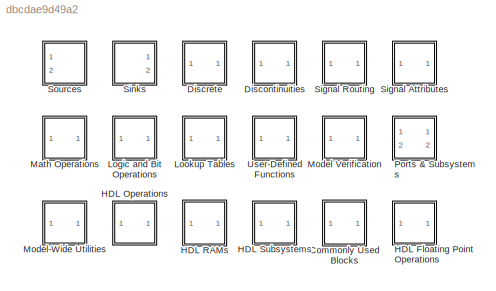
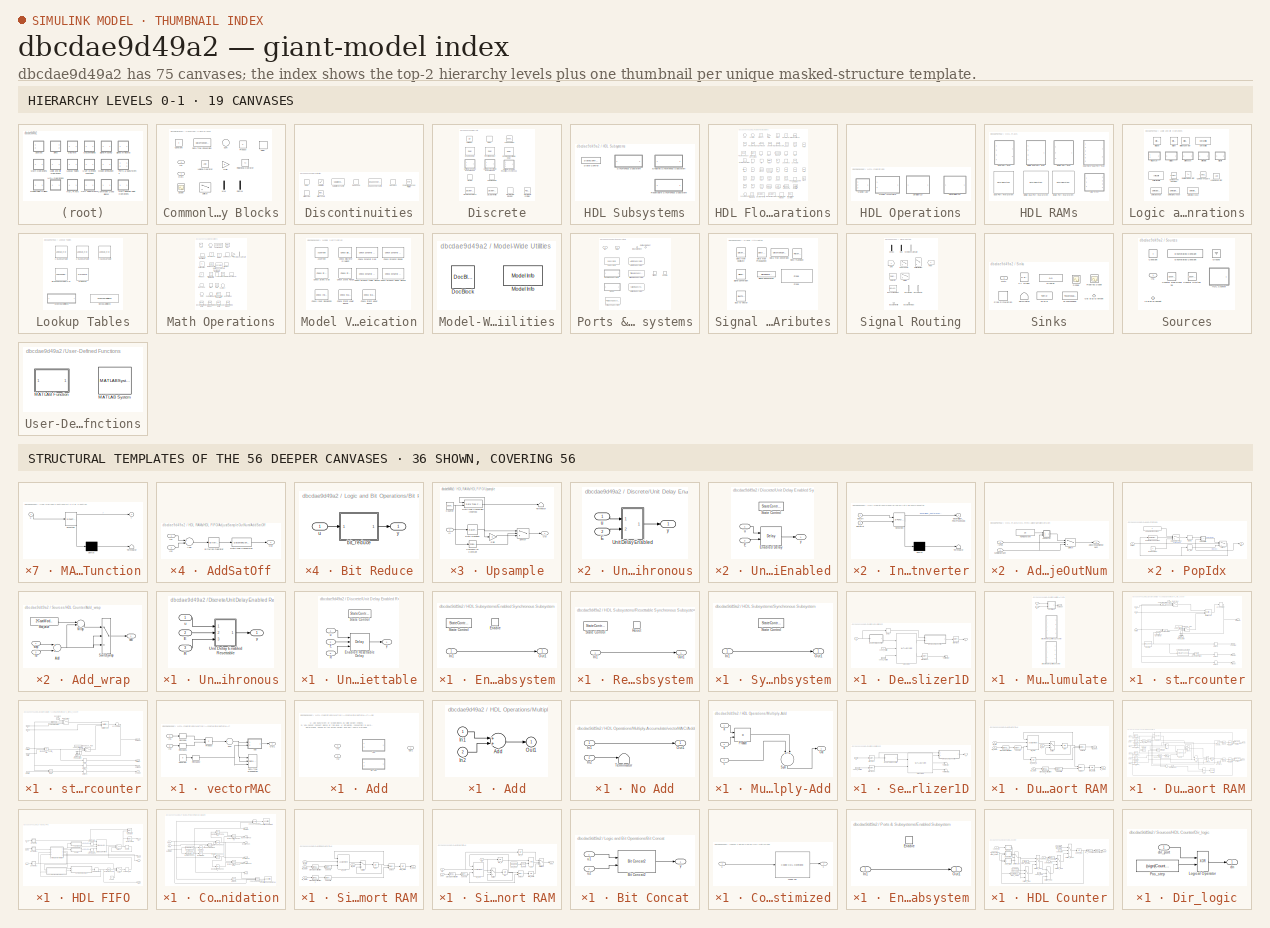
[diagram: thumbnail index - top-2 hierarchy levels (19 canvases) + 36 structural-template representatives of the remaining 56 canvases]
MODEL slx_dbcdae9d49a2
KIND library
CONFIG AbsTol = auto
CONFIG EnableMultiTasking = on
CONFIG FixedStep = auto
CONFIG MaxStep = auto
CONFIG MinStep = auto
CONFIG RelTol = 1e-3
CONFIG SampleTimeConstraint = Unconstrained
CONFIG Solver = ode45
CONFIG SolverName = ode45
CONFIG StartTime = 0.0
CONFIG StopTime = 10.0
BLOCK [SubSystem] Commonly Used Blocks
  Ports = [1, 1]
  RequestExecContextInheritance = off
BLOCK [Constant] Commonly Used Blocks/Constant
BLOCK [DataTypeConversion] Commonly Used Blocks/Data Type Conversion
  RndMeth = Floor
  SaturateOnIntegerOverflow = off
BLOCK [Delay] Commonly Used Blocks/Delay
  DelayLength = 1
  InitialCondition = 0
  InputPortMap = u0
  Ports = [1, 1]
BLOCK [Demux] Commonly Used Blocks/Demux
  DisplayOption = bar
  Outputs = 2
  Ports = [1, 2]
BLOCK [Gain] Commonly Used Blocks/Gain
  OutDataTypeStr = Inherit: Inherit via internal rule
  ParamDataTypeStr = Inherit: Inherit via internal rule
  SaturateOnIntegerOverflow = off
BLOCK [Inport] Commonly Used Blocks/In1
  IconDisplay = Port number
BLOCK [Logic] Commonly Used Blocks/Logical Operator
  AllPortsSameDT = off
  OutDataTypeStr = boolean
  Ports = [2, 1]
BLOCK [Mux] Commonly Used Blocks/Mux
  DisplayOption = bar
  Inputs = 2
  Ports = [2, 1]
BLOCK [Outport] Commonly Used Blocks/Out1
  IconDisplay = Port number
BLOCK [Product] Commonly Used Blocks/Product
  InputSameDT = off
  OutDataTypeStr = Inherit: Inherit via internal rule
  Ports = [2, 1]
  RndMeth = Floor
  SaturateOnIntegerOverflow = off
BLOCK [RelationalOperator] Commonly Used Blocks/Relational Operator
  InputSameDT = off
  Operator = <=
  OutDataTypeStr = boolean
  Ports = [2, 1]
BLOCK [Scope] Commonly Used Blocks/Scope
  Floating = off
  NumInputPorts = 1
  Ports = [1]
  ScopeSpecificationString = Simulink.scopes.TimeScopeBlockCfg('CurrentConfiguration', extmgr.ConfigurationSet(extmgr.Configuration('Core','General UI',true),extmgr.Configuration('Core','Source UI',true),extmgr.Configuration('Sources','WiredSimulink',true,'DataLoggingSaveFormat','Array','DataLoggingLimitDataPoints',true,'DataLoggingDecimation','1'),extmgr.Configuration('Visuals','Time Domain',true,'DisplayPropertyDefaults',st...<+829ch>
BLOCK [Sum] Commonly Used Blocks/Sum
  IconShape = round
  InputSameDT = off
  Inputs = |++
  OutDataTypeStr = Inherit: Inherit via internal rule
  Ports = [2, 1]
  SaturateOnIntegerOverflow = off
BLOCK [Switch] Commonly Used Blocks/Switch
  InputSameDT = off
  SaturateOnIntegerOverflow = off
BLOCK [SubSystem] Discontinuities
  Ports = []
  RequestExecContextInheritance = off
BLOCK [Backlash] Discontinuities/Backlash
BLOCK [Reference] Discontinuities/Coulomb & Viscous Friction  REF=simulink/Discontinuities/Coulomb &
Viscous Friction
  Ports = [1, 1]
  SourceBlock = simulink/Discontinuities/Coulomb &\nViscous Friction
  SourceProductBaseCode = SL
  SourceProductName = Simulink
  SourceType = Coulombic and Viscous Friction
BLOCK [DeadZone] Discontinuities/Dead Zone
BLOCK [Reference] Discontinuities/Dead Zone Dynamic  REF=simulink/Discontinuities/Dead Zone
Dynamic
  Ports = [3, 1]
  SourceBlock = simulink/Discontinuities/Dead Zone\nDynamic
  SourceProductBaseCode = SL
  SourceProductName = Simulink
  SourceType = Dead Zone Dynamic
BLOCK [HitCross] Discontinuities/Hit Crossing
  HitCrossingDirection = rising
  Ports = [1, 1]
BLOCK [Relay] Discontinuities/Relay
BLOCK [Saturate] Discontinuities/Saturation
  InputPortMap = u0
  Ports = [1, 1]
BLOCK [Reference] Discontinuities/Saturation Dynamic  REF=simulink/Discontinuities/Saturation
Dynamic
  Ports = [3, 1]
  SourceBlock = simulink/Discontinuities/Saturation\nDynamic
  SourceProductBaseCode = SL
  SourceProductName = Simulink
  SourceType = Saturation Dynamic
BLOCK [Reference] Discontinuities/Wrap To Zero  REF=simulink/Discontinuities/Wrap To Zero
  Ports = [1, 1]
  SourceBlock = simulink/Discontinuities/Wrap To Zero
  SourceProductBaseCode = SL
  SourceProductName = Simulink
  SourceType = Wrap To Zero
BLOCK [SubSystem] Discrete
  Ports = []
  RequestExecContextInheritance = off
BLOCK [Delay] Discrete/Delay
  InputPortMap = u0
  Ports = [1, 1]
BLOCK [DiscreteFir] Discrete/Discrete FIR Filter
  InputPortMap = u0
  OutputPortMap = o0
  Ports = [1, 1]
BLOCK [Reference] Discrete/Discrete PID Controller  REF=simulink/Continuous/PID Controller
  Ports = [1, 1]
  SourceBlock = simulink/Continuous/PID Controller
  SourceProductBaseCode = SL
  SourceProductName = Simulink
  SourceType = PID 1dof
BLOCK [DiscreteTransferFcn] Discrete/Discrete Transfer Fcn
  InputPortMap = u0
  Ports = [1, 1]
BLOCK [DiscreteIntegrator] Discrete/Discrete-Time Integrator
  ICPrevOutput = DiscIntNeverNeededParam
  ICPrevScaledInput = DiscIntNeverNeededParam
  InitialConditionSetting = Auto
  Ports = [1, 1]
  SampleTime = -1
BLOCK [Delay] Discrete/Enabled Delay
  InputPortMap = u0,e6
  Ports = [2, 1]
  ShowEnablePort = on
BLOCK [Delay] Discrete/Enabled Resettable Delay
  DelayLength = 1
  ExternalReset = Level
  InputPortMap = u0,e6,r5
  Ports = [3, 1]
  ShowEnablePort = on
BLOCK [Memory] Discrete/Memory
  InheritSampleTime = on
BLOCK [Delay] Discrete/Resettable Delay
  DelayLength = 1
  ExternalReset = Level
  InputPortMap = u0,r5
  Ports = [2, 1]
BLOCK [Reference] Discrete/Tapped Delay  REF=simulink/Discrete/Tapped Delay
  Ports = [1, 1]
  SourceBlock = simulink/Discrete/Tapped Delay
  SourceProductBaseCode = SL
  SourceProductName = Simulink
  SourceType = Tapped Delay Line
BLOCK [UnitDelay] Discrete/Unit Delay
  HasFrameUpgradeWarning = on
  SampleTime = -1
BLOCK [SubSystem] Discrete/Unit Delay Enabled Resettable Synchronous
  Ports = [3, 1]
  RequestExecContextInheritance = off
BLOCK [Inport] Discrete/Unit Delay Enabled Resettable Synchronous/E
  IconDisplay = Port number
  Port = 2
BLOCK [Inport] Discrete/Unit Delay Enabled Resettable Synchronous/R
  IconDisplay = Port number
  Port = 3
BLOCK [SubSystem] Discrete/Unit Delay Enabled Resettable Synchronous/Unit Delay Enabled Resettable
  Ports = [3, 1]
  RequestExecContextInheritance = off
BLOCK [Inport] Discrete/Unit Delay Enabled Resettable Synchronous/Unit Delay Enabled Resettable/E
  IconDisplay = Port number
  Port = 2
BLOCK [Delay] Discrete/Unit Delay Enabled Resettable Synchronous/Unit Delay Enabled Resettable/Enabled Resettable Delay
  DelayLength = 1
  ExternalReset = Level hold
  InitialCondition = InitialCondition
  InputPortMap = u0,e6,r5
  Ports = [3, 1]
  SampleTime = SampleTime
  ShowEnablePort = on
BLOCK [Inport] Discrete/Unit Delay Enabled Resettable Synchronous/Unit Delay Enabled Resettable/R
  IconDisplay = Port number
  Port = 3
BLOCK [StateControl] Discrete/Unit Delay Enabled Resettable Synchronous/Unit Delay Enabled Resettable/State Control
  StateControl = Synchronous
BLOCK [Inport] Discrete/Unit Delay Enabled Resettable Synchronous/Unit Delay Enabled Resettable/u
  IconDisplay = Port number
BLOCK [Outport] Discrete/Unit Delay Enabled Resettable Synchronous/Unit Delay Enabled Resettable/y
  IconDisplay = Port number
BLOCK [Inport] Discrete/Unit Delay Enabled Resettable Synchronous/u
  IconDisplay = Port number
BLOCK [Outport] Discrete/Unit Delay Enabled Resettable Synchronous/y
  IconDisplay = Port number
BLOCK [SubSystem] Discrete/Unit Delay Enabled Synchronous
  Ports = [2, 1]
  RequestExecContextInheritance = off
BLOCK [Inport] Discrete/Unit Delay Enabled Synchronous/E
  IconDisplay = Port number
  Port = 2
BLOCK [SubSystem] Discrete/Unit Delay Enabled Synchronous/Unit Delay Enabled
  Ports = [2, 1]
  RequestExecContextInheritance = off
BLOCK [Inport] Discrete/Unit Delay Enabled Synchronous/Unit Delay Enabled/E
  IconDisplay = Port number
  Port = 2
BLOCK [Delay] Discrete/Unit Delay Enabled Synchronous/Unit Delay Enabled/Enabled Delay
  DelayLength = 1
  InitialCondition = InitialCondition
  InputPortMap = u0,e6
  Ports = [2, 1]
  SampleTime = SampleTime
  ShowEnablePort = on
BLOCK [StateControl] Discrete/Unit Delay Enabled Synchronous/Unit Delay Enabled/State Control
  StateControl = Synchronous
BLOCK [Inport] Discrete/Unit Delay Enabled Synchronous/Unit Delay Enabled/u
  IconDisplay = Port number
BLOCK [Outport] Discrete/Unit Delay Enabled Synchronous/Unit Delay Enabled/y
  IconDisplay = Port number
BLOCK [Inport] Discrete/Unit Delay Enabled Synchronous/u
  IconDisplay = Port number
BLOCK [Outport] Discrete/Unit Delay Enabled Synchronous/y
  IconDisplay = Port number
BLOCK [SubSystem] Discrete/Unit Delay Resettable Synchronous
  Ports = [2, 1]
  RequestExecContextInheritance = off
BLOCK [Inport] Discrete/Unit Delay Resettable Synchronous/R
  IconDisplay = Port number
  Port = 2
BLOCK [SubSystem] Discrete/Unit Delay Resettable Synchronous/Unit Delay Resettable
  Ports = [2, 1]
  RequestExecContextInheritance = off
BLOCK [Inport] Discrete/Unit Delay Resettable Synchronous/Unit Delay Resettable/R
  IconDisplay = Port number
  Port = 2
BLOCK [Delay] Discrete/Unit Delay Resettable Synchronous/Unit Delay Resettable/Resettable Delay
  DelayLength = 1
  ExternalReset = Level hold
  InitialCondition = InitialCondition
  InputPortMap = u0,r5
  Ports = [2, 1]
  SampleTime = SampleTime
BLOCK [StateControl] Discrete/Unit Delay Resettable Synchronous/Unit Delay Resettable/State Control
  StateControl = Synchronous
BLOCK [Inport] Discrete/Unit Delay Resettable Synchronous/Unit Delay Resettable/u
  IconDisplay = Port number
BLOCK [Outport] Discrete/Unit Delay Resettable Synchronous/Unit Delay Resettable/y
  IconDisplay = Port number
BLOCK [Inport] Discrete/Unit Delay Resettable Synchronous/u
  IconDisplay = Port number
BLOCK [Outport] Discrete/Unit Delay Resettable Synchronous/y
  IconDisplay = Port number
BLOCK [ZeroOrderHold] Discrete/Zero-Order Hold
  SampleTime = -1
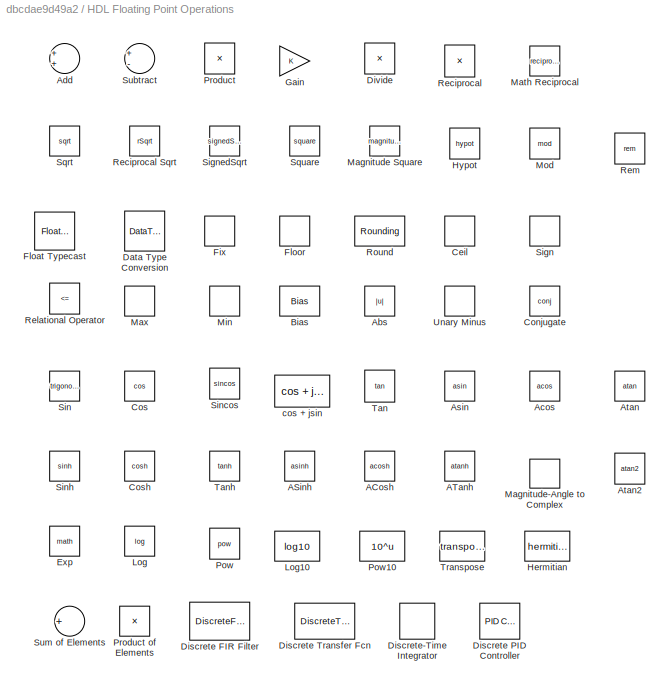
BLOCK [SubSystem] HDL Floating Point Operations
  Ports = []
  RequestExecContextInheritance = off
BLOCK [Trigonometry] HDL Floating Point Operations/ACosh
  Operator = acosh
  Ports = [1, 1]
BLOCK [Trigonometry] HDL Floating Point Operations/ASinh
  Operator = asinh
  Ports = [1, 1]
BLOCK [Trigonometry] HDL Floating Point Operations/ATanh
  Operator = atanh
  Ports = [1, 1]
BLOCK [Abs] HDL Floating Point Operations/Abs
  SaturateOnIntegerOverflow = off
BLOCK [Trigonometry] HDL Floating Point Operations/Acos
  Operator = acos
  Ports = [1, 1]
BLOCK [Sum] HDL Floating Point Operations/Add
  InputSameDT = off
  OutDataTypeStr = Inherit: Inherit via internal rule
  Ports = [2, 1]
  SaturateOnIntegerOverflow = off
BLOCK [Trigonometry] HDL Floating Point Operations/Asin
  Operator = asin
  Ports = [1, 1]
BLOCK [Trigonometry] HDL Floating Point Operations/Atan
  Operator = atan
  Ports = [1, 1]
BLOCK [Trigonometry] HDL Floating Point Operations/Atan2
  Operator = atan2
  Ports = [2, 1]
BLOCK [Bias] HDL Floating Point Operations/Bias
  Bias = 0.0
  SaturateOnIntegerOverflow = off
BLOCK [Rounding] HDL Floating Point Operations/Ceil
  Operator = ceil
BLOCK [Math] HDL Floating Point Operations/Conjugate
  Operator = conj
  Ports = [1, 1]
  RndMeth = Zero
BLOCK [Trigonometry] HDL Floating Point Operations/Cos
  Operator = cos
  Ports = [1, 1]
BLOCK [Trigonometry] HDL Floating Point Operations/Cosh
  Operator = cosh
  Ports = [1, 1]
BLOCK [DataTypeConversion] HDL Floating Point Operations/Data Type Conversion
  OutDataTypeStr = single
  RndMeth = Nearest
  SaturateOnIntegerOverflow = off
BLOCK [DiscreteFir] HDL Floating Point Operations/Discrete FIR Filter
  InputPortMap = u0
  OutputPortMap = o0
  Ports = [1, 1]
BLOCK [Reference] HDL Floating Point Operations/Discrete PID Controller  REF=simulink/Continuous/PID Controller
  Ports = [1, 1]
  SourceBlock = simulink/Continuous/PID Controller
  SourceProductBaseCode = SL
  SourceProductName = Simulink
  SourceType = PID 1dof
BLOCK [DiscreteTransferFcn] HDL Floating Point Operations/Discrete Transfer Fcn
  InputPortMap = u0
  Ports = [1, 1]
BLOCK [DiscreteIntegrator] HDL Floating Point Operations/Discrete-Time Integrator
  ICPrevOutput = DiscIntNeverNeededParam
  ICPrevScaledInput = DiscIntNeverNeededParam
  InitialConditionSetting = Auto
  Ports = [1, 1]
  SampleTime = -1
BLOCK [Product] HDL Floating Point Operations/Divide
  InputSameDT = off
  Inputs = */
  OutDataTypeStr = Inherit: Inherit via internal rule
  Ports = [2, 1]
  RndMeth = Floor
  SaturateOnIntegerOverflow = off
BLOCK [Math] HDL Floating Point Operations/Exp
  Ports = [1, 1]
BLOCK [Rounding] HDL Floating Point Operations/Fix
  Operator = fix
BLOCK [FloatTypecast] HDL Floating Point Operations/Float Typecast
BLOCK [Rounding] HDL Floating Point Operations/Floor
BLOCK [Gain] HDL Floating Point Operations/Gain
  OutDataTypeStr = Inherit: Inherit via internal rule
  ParamDataTypeStr = Inherit: Inherit via internal rule
  SaturateOnIntegerOverflow = off
BLOCK [Math] HDL Floating Point Operations/Hermitian
  Operator = hermitian
  Ports = [1, 1]
  RndMeth = Zero
BLOCK [Math] HDL Floating Point Operations/Hypot
  Operator = hypot
  Ports = [2, 1]
  RndMeth = Zero
BLOCK [Math] HDL Floating Point Operations/Log
  Operator = log
  Ports = [1, 1]
BLOCK [Math] HDL Floating Point Operations/Log10
  Operator = log10
  Ports = [1, 1]
  RndMeth = Zero
BLOCK [Math] HDL Floating Point Operations/Magnitude Square
  Operator = magnitude^2
  Ports = [1, 1]
  RndMeth = Zero
BLOCK [MagnitudeAngleToComplex] HDL Floating Point Operations/Magnitude-Angle to Complex
  Ports = [2, 1]
BLOCK [Math] HDL Floating Point Operations/Math Reciprocal
  Operator = reciprocal
  Ports = [1, 1]
BLOCK [MinMax] HDL Floating Point Operations/Max
  Function = max
  InputSameDT = off
  Ports = [1, 1]
  SaturateOnIntegerOverflow = off
BLOCK [MinMax] HDL Floating Point Operations/Min
  InputSameDT = off
  Ports = [1, 1]
  SaturateOnIntegerOverflow = off
BLOCK [Math] HDL Floating Point Operations/Mod
  Operator = mod
  Ports = [2, 1]
BLOCK [Math] HDL Floating Point Operations/Pow
  Operator = pow
  Ports = [2, 1]
  RndMeth = Zero
BLOCK [Math] HDL Floating Point Operations/Pow10
  Operator = 10^u
  Ports = [1, 1]
  RndMeth = Zero
BLOCK [Product] HDL Floating Point Operations/Product
  InputSameDT = off
  OutDataTypeStr = Inherit: Inherit via internal rule
  Ports = [2, 1]
  RndMeth = Floor
  SaturateOnIntegerOverflow = off
BLOCK [Product] HDL Floating Point Operations/Product of Elements
  InputSameDT = off
  Inputs = *
  OutDataTypeStr = Inherit: Inherit via internal rule
  Ports = [1, 1]
  RndMeth = Floor
  SaturateOnIntegerOverflow = off
BLOCK [Product] HDL Floating Point Operations/Reciprocal
  InputSameDT = off
  Inputs = /
  OutDataTypeStr = Inherit: Inherit via internal rule
  Ports = [1, 1]
BLOCK [Sqrt] HDL Floating Point Operations/Reciprocal Sqrt
  IntermediateResultsDataTypeStr = double
  Operator = rSqrt
BLOCK [RelationalOperator] HDL Floating Point Operations/Relational Operator
  InputSameDT = off
  Operator = <=
  OutDataTypeStr = boolean
  Ports = [2, 1]
  RndMeth = Simplest
BLOCK [Math] HDL Floating Point Operations/Rem
  Operator = rem
  Ports = [2, 1]
BLOCK [Rounding] HDL Floating Point Operations/Round
  Operator = round
BLOCK [Signum] HDL Floating Point Operations/Sign
BLOCK [Sqrt] HDL Floating Point Operations/SignedSqrt
  IntermediateResultsDataTypeStr = single
  Operator = signedSqrt
BLOCK [Trigonometry] HDL Floating Point Operations/Sin
  Ports = [1, 1]
BLOCK [Trigonometry] HDL Floating Point Operations/Sincos
  Operator = sincos
  Ports = [1, 2]
BLOCK [Trigonometry] HDL Floating Point Operations/Sinh
  Operator = sinh
  Ports = [1, 1]
BLOCK [Sqrt] HDL Floating Point Operations/Sqrt
  IntermediateResultsDataTypeStr = double
BLOCK [Math] HDL Floating Point Operations/Square
  Operator = square
  Ports = [1, 1]
  RndMeth = Zero
BLOCK [Sum] HDL Floating Point Operations/Subtract
  InputSameDT = off
  Inputs = +-
  OutDataTypeStr = Inherit: Inherit via internal rule
  Ports = [2, 1]
  SaturateOnIntegerOverflow = off
BLOCK [Sum] HDL Floating Point Operations/Sum of Elements
  InputSameDT = off
  Inputs = +
  OutDataTypeStr = Inherit: Inherit via internal rule
  Ports = [1, 1]
  SaturateOnIntegerOverflow = off
BLOCK [Trigonometry] HDL Floating Point Operations/Tan
  Operator = tan
  Ports = [1, 1]
BLOCK [Trigonometry] HDL Floating Point Operations/Tanh
  Operator = tanh
  Ports = [1, 1]
BLOCK [Math] HDL Floating Point Operations/Transpose
  Operator = transpose
  Ports = [1, 1]
  RndMeth = Zero
BLOCK [UnaryMinus] HDL Floating Point Operations/Unary Minus
BLOCK [Trigonometry] HDL Floating Point Operations/cos + jsin
  Operator = cos + jsin
  Ports = [1, 1]
BLOCK [SubSystem] HDL Operations
  Ports = []
  RequestExecContextInheritance = off
BLOCK [SubSystem] HDL Operations/Deserializer1D
  MinAlgLoopOccurrences = on
  Ports = [1, 1]
  RequestExecContextInheritance = off
BLOCK [Delay] HDL Operations/Deserializer1D/Delay
  DelayLength = 1
  InitialCondition = 0
  InputPortMap = u0
  Ports = [1, 1]
BLOCK [SubSystem] HDL Operations/Deserializer1D/EnumToIntConverter
  ErrorFcn = Stateflow.Translate.translate
  PermitHierarchicalResolution = ExplicitOnly
  Ports = [1, 1]
  RequestExecContextInheritance = off
  SFBlockType = MATLAB Function
  TreatAsAtomicUnit = on
BLOCK [Demux] HDL Operations/Deserializer1D/EnumToIntConverter/ Demux 
  Outputs = 1
  Ports = [1, 1]
BLOCK [S-Function] HDL Operations/Deserializer1D/EnumToIntConverter/ SFunction 
  EnableBusSupport = off
  FunctionName = sf_sfun
  Parameters = InitialCondition
  PortCounts = [1 2]
  Ports = [1, 2]
  SFcnIsStateOwnerBlock = off
  SFunctionDeploymentMode = off
  Tag = Stateflow S-Function hdlsllib 4
BLOCK [Terminator] HDL Operations/Deserializer1D/EnumToIntConverter/ Terminator 
BLOCK [Inport] HDL Operations/Deserializer1D/EnumToIntConverter/dataIn
  IconDisplay = Port number
BLOCK [Outport] HDL Operations/Deserializer1D/EnumToIntConverter/deserializer_preProcessed
  IconDisplay = Port number
BLOCK [MATLABSystem] HDL Operations/Deserializer1D/HDL1DDs
  IdleCycles = IdleCycles
  InitialCondition = 0
  MaskDisplay = disp(['Deserializer' char(10) '1D']);\nport_label('input',1,'dataIn');\nport_label('input',2,'startIn');\nport_label('input',3,'validIn');\nport_label('output',1,'dataOut');\nport_label('output',2,'validOut');
  MaskType = hdl.deserializer1D
  Ports = [3, 2]
  Ratio = Ratio
  SimulateUsing = Code generation
  StartInPortEnb = off
  System = hdl.deserializer1D
  ValidInPortEnb = off
BLOCK [SubSystem] HDL Operations/Deserializer1D/IntToEnumConverter
  ErrorFcn = Stateflow.Translate.translate
  PermitHierarchicalResolution = ExplicitOnly
  Ports = [2, 1]
  RequestExecContextInheritance = off
  SFBlockType = MATLAB Function
  TreatAsAtomicUnit = on
BLOCK [Demux] HDL Operations/Deserializer1D/IntToEnumConverter/ Demux 
  Outputs = 1
  Ports = [1, 1]
BLOCK [S-Function] HDL Operations/Deserializer1D/IntToEnumConverter/ SFunction 
  EnableBusSupport = off
  FunctionName = sf_sfun
  PortCounts = [2 2]
  Ports = [2, 2]
  SFcnIsStateOwnerBlock = off
  SFunctionDeploymentMode = off
  Tag = Stateflow S-Function hdlsllib 5
BLOCK [Terminator] HDL Operations/Deserializer1D/IntToEnumConverter/ Terminator 
BLOCK [Inport] HDL Operations/Deserializer1D/IntToEnumConverter/dataIn
  IconDisplay = Port number
BLOCK [Inport] HDL Operations/Deserializer1D/IntToEnumConverter/dataOut
  IconDisplay = Port number
  Port = 2
BLOCK [Outport] HDL Operations/Deserializer1D/IntToEnumConverter/deserializer_PostProcessed
  IconDisplay = Port number
BLOCK [Outport] HDL Operations/Deserializer1D/P
  IconDisplay = Port number
BLOCK [Inport] HDL Operations/Deserializer1D/S
  IconDisplay = Port number
BLOCK [Terminator] HDL Operations/Deserializer1D/Terminator
BLOCK [Constant] HDL Operations/Deserializer1D/const_startIn
  OutDataTypeStr = boolean
BLOCK [Constant] HDL Operations/Deserializer1D/const_validIn
  OutDataTypeStr = boolean
BLOCK [RateTransition] HDL Operations/Deserializer1D/rateTrans
  OutPortSampleTime = 1
  OutPortSampleTimeMultiple = 1 + 0
  OutPortSampleTimeOpt = Multiple of input port sample time
BLOCK [RateTransition] HDL Operations/Deserializer1D/rateTrans1
  OutPortSampleTime = 1
  OutPortSampleTimeMultiple = 1 + 0
  OutPortSampleTimeOpt = Multiple of input port sample time
BLOCK [SubSystem] HDL Operations/Multiply-Accumulate
  Ports = [2, 1]
  RequestExecContextInheritance = off
BLOCK [Inport] HDL Operations/Multiply-Accumulate/a
  IconDisplay = Port number
BLOCK [Inport] HDL Operations/Multiply-Accumulate/b
  IconDisplay = Port number
  Port = 2
BLOCK [Outport] HDL Operations/Multiply-Accumulate/dataOut
  IconDisplay = Port number
BLOCK [SubSystem] HDL Operations/Multiply-Accumulate/streamingMAC_with_counter
  Commented = on
  Ports = [3, 4]
  RequestExecContextInheritance = off
BLOCK [Reference] HDL Operations/Multiply-Accumulate/streamingMAC_with_counter/Compare To Constant1  REF=simulink/Logic and Bit
Operations/Compare
To Constant
  Ports = [1, 1]
  SourceBlock = simulink/Logic and Bit\nOperations/Compare\nTo Constant
  SourceProductBaseCode = SL
  SourceProductName = Simulink
  SourceType = Compare To Constant
BLOCK [Reference] HDL Operations/Multiply-Accumulate/streamingMAC_with_counter/Compare To Constant2  REF=simulink/Logic and Bit
Operations/Compare
To Constant
  Ports = [1, 1]
  SourceBlock = simulink/Logic and Bit\nOperations/Compare\nTo Constant
  SourceProductBaseCode = SL
  SourceProductName = Simulink
  SourceType = Compare To Constant
BLOCK [Constant] HDL Operations/Multiply-Accumulate/streamingMAC_with_counter/Constant
  OutDataTypeStr = Inherit: Inherit via back propagation
  SampleTime = -1
  Value = 0
BLOCK [Reference] HDL Operations/Multiply-Accumulate/streamingMAC_with_counter/Counter  REF=$bdroot/Sources/HDL Counter
  Ports = [1, 1]
  SourceBlock = $bdroot/Sources/HDL Counter
  SourceType = HDL Counter
BLOCK [Reference] HDL Operations/Multiply-Accumulate/streamingMAC_with_counter/Data Type Propagation  REF=simulink/Signal
Attributes/Data Type
Propagation
  Ports = [3]
  SourceBlock = simulink/Signal\nAttributes/Data Type\nPropagation
  SourceProductBaseCode = SL
  SourceProductName = Simulink
  SourceType = Data Type Propagation
BLOCK [Delay] HDL Operations/Multiply-Accumulate/streamingMAC_with_counter/Delay3
  DelayLength = 1
  InitialCondition = 0
  InputPortMap = u0
  Ports = [1, 1]
BLOCK [Delay] HDL Operations/Multiply-Accumulate/streamingMAC_with_counter/Delay4
  DelayLength = 1
  InitialCondition = 1
  InputPortMap = u0
  Ports = [1, 1]
BLOCK [Delay] HDL Operations/Multiply-Accumulate/streamingMAC_with_counter/Delay5
  DelayLength = 1
  InitialCondition = 0
  InputPortMap = u0
  Ports = [1, 1]
BLOCK [Logic] HDL Operations/Multiply-Accumulate/streamingMAC_with_counter/Logical Operator
  AllPortsSameDT = off
  Operator = NOT
  OutDataTypeStr = boolean
  Ports = [1, 1]
BLOCK [Logic] HDL Operations/Multiply-Accumulate/streamingMAC_with_counter/Logical Operator1
  AllPortsSameDT = off
  OutDataTypeStr = boolean
  Ports = [2, 1]
BLOCK [Logic] HDL Operations/Multiply-Accumulate/streamingMAC_with_counter/Logical Operator2
  AllPortsSameDT = off
  OutDataTypeStr = boolean
  Ports = [2, 1]
BLOCK [Reference] HDL Operations/Multiply-Accumulate/streamingMAC_with_counter/Multiply-Add  REF=$bdroot/HDL Operations/Multiply-Add
  Ports = [3, 1]
  SourceBlock = $bdroot/HDL Operations/Multiply-Add
  SourceType = Multiply-Add
BLOCK [Inport] HDL Operations/Multiply-Accumulate/streamingMAC_with_counter/a 
  IconDisplay = Port number
BLOCK [Delay] HDL Operations/Multiply-Accumulate/streamingMAC_with_counter/accumulator
  DelayLength = 1
  InitialCondition = 0
  InputPortMap = u0
  Ports = [1, 1]
BLOCK [Inport] HDL Operations/Multiply-Accumulate/streamingMAC_with_counter/b 
  IconDisplay = Port number
  Port = 2
BLOCK [Constant] HDL Operations/Multiply-Accumulate/streamingMAC_with_counter/const_initValue
  OutDataTypeStr = Inherit: Inherit via back propagation
  SampleTime = -1
  Value = 0
BLOCK [Outport] HDL Operations/Multiply-Accumulate/streamingMAC_with_counter/countOut
  IconDisplay = Port number
  Port = 3
BLOCK [Outport] HDL Operations/Multiply-Accumulate/streamingMAC_with_counter/dataOut
  IconDisplay = Port number
BLOCK [Outport] HDL Operations/Multiply-Accumulate/streamingMAC_with_counter/endOut
  IconDisplay = Port number
  Port = 2
BLOCK [Switch] HDL Operations/Multiply-Accumulate/streamingMAC_with_counter/feedback_mux
  Criteria = u2 > Threshold
  InputSameDT = off
  SaturateOnIntegerOverflow = off
BLOCK [Switch] HDL Operations/Multiply-Accumulate/streamingMAC_with_counter/input_mux
  Criteria = u2 > Threshold
  InputSameDT = off
  SaturateOnIntegerOverflow = off
BLOCK [Inport] HDL Operations/Multiply-Accumulate/streamingMAC_with_counter/validIn
  IconDisplay = Port number
  Port = 3
BLOCK [Outport] HDL Operations/Multiply-Accumulate/streamingMAC_with_counter/validOut
  IconDisplay = Port number
  Port = 4
BLOCK [SubSystem] HDL Operations/Multiply-Accumulate/streamingMAC_without_counter
  Commented = on
  Ports = [5, 4]
  RequestExecContextInheritance = off
BLOCK [Constant] HDL Operations/Multiply-Accumulate/streamingMAC_without_counter/Constant
  OutDataTypeStr = Inherit: Inherit via back propagation
  SampleTime = -1
  Value = 0
BLOCK [Reference] HDL Operations/Multiply-Accumulate/streamingMAC_without_counter/Data Type Propagation  REF=simulink/Signal
Attributes/Data Type
Propagation
  Ports = [3]
  SourceBlock = simulink/Signal\nAttributes/Data Type\nPropagation
  SourceProductBaseCode = SL
  SourceProductName = Simulink
  SourceType = Data Type Propagation
BLOCK [Delay] HDL Operations/Multiply-Accumulate/streamingMAC_without_counter/Delay
  DelayLength = 1
  InputPortMap = u0
  Ports = [1, 1]
BLOCK [Delay] HDL Operations/Multiply-Accumulate/streamingMAC_without_counter/Delay1
  DelayLength = 1
  InputPortMap = u0
  Ports = [1, 1]
BLOCK [Delay] HDL Operations/Multiply-Accumulate/streamingMAC_without_counter/Delay2
  DelayLength = 1
  InputPortMap = u0
  Ports = [1, 1]
BLOCK [Logic] HDL Operations/Multiply-Accumulate/streamingMAC_without_counter/Logical Operator
  AllPortsSameDT = off
  Operator = NOT
  OutDataTypeStr = boolean
  Ports = [1, 1]
BLOCK [Reference] HDL Operations/Multiply-Accumulate/streamingMAC_without_counter/Multiply-Add  REF=$bdroot/HDL Operations/Multiply-Add
  Ports = [3, 1]
  SourceBlock = $bdroot/HDL Operations/Multiply-Add
  SourceType = Multiply-Add
BLOCK [Inport] HDL Operations/Multiply-Accumulate/streamingMAC_without_counter/a 
  IconDisplay = Port number
BLOCK [Delay] HDL Operations/Multiply-Accumulate/streamingMAC_without_counter/accumulator
  DelayLength = 1
  InitialCondition = 0
  InputPortMap = u0
  Ports = [1, 1]
BLOCK [Logic] HDL Operations/Multiply-Accumulate/streamingMAC_without_counter/and
  AllPortsSameDT = off
  OutDataTypeStr = boolean
  Ports = [2, 1]
BLOCK [Inport] HDL Operations/Multiply-Accumulate/streamingMAC_without_counter/b 
  IconDisplay = Port number
  Port = 2
BLOCK [Constant] HDL Operations/Multiply-Accumulate/streamingMAC_without_counter/const_initValue
  OutDataTypeStr = Inherit: Inherit via back propagation
  SampleTime = -1
  Value = 0
BLOCK [Outport] HDL Operations/Multiply-Accumulate/streamingMAC_without_counter/dataOut
  IconDisplay = Port number
BLOCK [Inport] HDL Operations/Multiply-Accumulate/streamingMAC_without_counter/endIn
  IconDisplay = Port number
  Port = 4
BLOCK [Outport] HDL Operations/Multiply-Accumulate/streamingMAC_without_counter/endOut
  IconDisplay = Port number
  Port = 3
BLOCK [Logic] HDL Operations/Multiply-Accumulate/streamingMAC_without_counter/feedback_control_sig
  AllPortsSameDT = off
  OutDataTypeStr = boolean
  Ports = [2, 1]
BLOCK [Switch] HDL Operations/Multiply-Accumulate/streamingMAC_without_counter/feedback_mux
  Criteria = u2 > Threshold
  InputSameDT = off
  SaturateOnIntegerOverflow = off
BLOCK [Switch] HDL Operations/Multiply-Accumulate/streamingMAC_without_counter/input_mux
  Criteria = u2 > Threshold
  InputSameDT = off
  SaturateOnIntegerOverflow = off
BLOCK [Inport] HDL Operations/Multiply-Accumulate/streamingMAC_without_counter/startIn
  IconDisplay = Port number
  Port = 3
BLOCK [Outport] HDL Operations/Multiply-Accumulate/streamingMAC_without_counter/startOut
  IconDisplay = Port number
  Port = 2
BLOCK [Inport] HDL Operations/Multiply-Accumulate/streamingMAC_without_counter/validIn
  IconDisplay = Port number
  Port = 5
BLOCK [Outport] HDL Operations/Multiply-Accumulate/streamingMAC_without_counter/validOut
  IconDisplay = Port number
  Port = 4
BLOCK [SubSystem] HDL Operations/Multiply-Accumulate/vectorMAC
  Ports = [2, 1]
  RequestExecContextInheritance = off
BLOCK [SubSystem] HDL Operations/Multiply-Accumulate/vectorMAC/Add
  LabelModeActiveChoice = zeroInitVal
  Ports = [2, 1]
  RequestExecContextInheritance = off
  Variant = on
  VariantControlMode = Label
BLOCK [SubSystem] HDL Operations/Multiply-Accumulate/vectorMAC/Add/Add
  Ports = [2, 1]
  RequestExecContextInheritance = off
  VariantControl = nonzeroInitVal
BLOCK [Sum] HDL Operations/Multiply-Accumulate/vectorMAC/Add/Add/Add
  AccumDataTypeStr = Inherit: Same as first input
  InputSameDT = off
  Ports = [2, 1]
  SaturateOnIntegerOverflow = off
BLOCK [Inport] HDL Operations/Multiply-Accumulate/vectorMAC/Add/Add/In1
  IconDisplay = Port number
BLOCK [Inport] HDL Operations/Multiply-Accumulate/vectorMAC/Add/Add/In2
  IconDisplay = Port number
  Port = 2
BLOCK [Outport] HDL Operations/Multiply-Accumulate/vectorMAC/Add/Add/Out1
  IconDisplay = Port number
BLOCK [Inport] HDL Operations/Multiply-Accumulate/vectorMAC/Add/In1
  IconDisplay = Port number
BLOCK [Inport] HDL Operations/Multiply-Accumulate/vectorMAC/Add/In2
  IconDisplay = Port number
  Port = 2
BLOCK [SubSystem] HDL Operations/Multiply-Accumulate/vectorMAC/Add/No Add
  Ports = [2, 1]
  RequestExecContextInheritance = off
  VariantControl = zeroInitVal
BLOCK [Inport] HDL Operations/Multiply-Accumulate/vectorMAC/Add/No Add/In1
  IconDisplay = Port number
BLOCK [Inport] HDL Operations/Multiply-Accumulate/vectorMAC/Add/No Add/In2
  IconDisplay = Port number
  Port = 2
BLOCK [Outport] HDL Operations/Multiply-Accumulate/vectorMAC/Add/No Add/Out1
  IconDisplay = Port number
BLOCK [Terminator] HDL Operations/Multiply-Accumulate/vectorMAC/Add/No Add/Terminator
BLOCK [Outport] HDL Operations/Multiply-Accumulate/vectorMAC/Add/Out1
  IconDisplay = Port number
BLOCK [Constant] HDL Operations/Multiply-Accumulate/vectorMAC/Constant
  OutDataTypeStr = Inherit: Inherit via back propagation
  SampleTime = -1
  Value = 0
BLOCK [Reference] HDL Operations/Multiply-Accumulate/vectorMAC/Data Type Propagation  REF=simulink/Signal
Attributes/Data Type
Propagation
  Ports = [3]
  SourceBlock = simulink/Signal\nAttributes/Data Type\nPropagation
  SourceProductBaseCode = SL
  SourceProductName = Simulink
  SourceType = Data Type Propagation
BLOCK [Inport] HDL Operations/Multiply-Accumulate/vectorMAC/In1
  IconDisplay = Port number
BLOCK [Inport] HDL Operations/Multiply-Accumulate/vectorMAC/In2
  IconDisplay = Port number
  Port = 2
BLOCK [Outport] HDL Operations/Multiply-Accumulate/vectorMAC/Out1
  IconDisplay = Port number
BLOCK [Product] HDL Operations/Multiply-Accumulate/vectorMAC/Product
  InputSameDT = off
  OutDataTypeStr = Inherit: Inherit via internal rule
  Ports = [2, 1]
  RndMeth = Floor
  SaturateOnIntegerOverflow = off
BLOCK [Reshape] HDL Operations/Multiply-Accumulate/vectorMAC/Reshape
  Ports = [1, 1]
BLOCK [Reshape] HDL Operations/Multiply-Accumulate/vectorMAC/Reshape1
  Ports = [1, 1]
BLOCK [Reshape] HDL Operations/Multiply-Accumulate/vectorMAC/Reshape2
  Ports = [1, 1]
BLOCK [Sum] HDL Operations/Multiply-Accumulate/vectorMAC/Sum
  InputSameDT = off
  Inputs = +
  OutDataTypeStr = Inherit: Same as accumulator
  Ports = [1, 1]
  SaturateOnIntegerOverflow = off
BLOCK [SubSystem] HDL Operations/Multiply-Add
  Ports = [3, 1]
  RequestExecContextInheritance = off
BLOCK [Outport] HDL Operations/Multiply-Add/Out
  IconDisplay = Port number
BLOCK [Product] HDL Operations/Multiply-Add/Product
  InputSameDT = off
  OutDataTypeStr = Inherit: Inherit via internal rule
  Ports = [2, 1]
  RndMeth = Floor
  SaturateOnIntegerOverflow = off
BLOCK [Sum] HDL Operations/Multiply-Add/Sum
  InputSameDT = off
  OutDataTypeStr = datatype
  Ports = [2, 1]
  SaturateOnIntegerOverflow = off
BLOCK [Inport] HDL Operations/Multiply-Add/a
  IconDisplay = Port number
BLOCK [Inport] HDL Operations/Multiply-Add/b
  IconDisplay = Port number
  Port = 2
BLOCK [Inport] HDL Operations/Multiply-Add/c
  IconDisplay = Port number
  Port = 3
BLOCK [SubSystem] HDL Operations/Serializer1D
  Ports = [1, 1]
  RequestExecContextInheritance = off
BLOCK [SubSystem] HDL Operations/Serializer1D/EnumToIntConverter
  ErrorFcn = Stateflow.Translate.translate
  PermitHierarchicalResolution = ExplicitOnly
  Ports = [1, 1]
  RequestExecContextInheritance = off
  SFBlockType = MATLAB Function
  TreatAsAtomicUnit = on
BLOCK [Demux] HDL Operations/Serializer1D/EnumToIntConverter/ Demux 
  Outputs = 1
  Ports = [1, 1]
BLOCK [S-Function] HDL Operations/Serializer1D/EnumToIntConverter/ SFunction 
  EnableBusSupport = off
  FunctionName = sf_sfun
  PortCounts = [1 2]
  Ports = [1, 2]
  SFcnIsStateOwnerBlock = off
  SFunctionDeploymentMode = off
  Tag = Stateflow S-Function hdlsllib 1
BLOCK [Terminator] HDL Operations/Serializer1D/EnumToIntConverter/ Terminator 
BLOCK [Inport] HDL Operations/Serializer1D/EnumToIntConverter/dataIn
  IconDisplay = Port number
BLOCK [Outport] HDL Operations/Serializer1D/EnumToIntConverter/serializer_preProcessed
  IconDisplay = Port number
BLOCK [MATLABSystem] HDL Operations/Serializer1D/HDL1DSe
  IdleCycles = IdleCycles
  MaskDisplay = disp(['Serializer' char(10) '1D']);\nport_label('input',1,'dataIn');\nport_label('input',2,'validIn');\nport_label('output',1,'dataOut');\nport_label('output',2,'startOut');\nport_label('output',3,'validOut');
  MaskType = hdl.serializer1D
  Ports = [2, 3]
  Ratio = Ratio
  SimulateUsing = Code generation
  System = hdl.serializer1D
BLOCK [SubSystem] HDL Operations/Serializer1D/IntToEnumConverter
  ErrorFcn = Stateflow.Translate.translate
  PermitHierarchicalResolution = ExplicitOnly
  Ports = [2, 1]
  RequestExecContextInheritance = off
  SFBlockType = MATLAB Function
  TreatAsAtomicUnit = on
BLOCK [Demux] HDL Operations/Serializer1D/IntToEnumConverter/ Demux 
  Outputs = 1
  Ports = [1, 1]
BLOCK [S-Function] HDL Operations/Serializer1D/IntToEnumConverter/ SFunction 
  EnableBusSupport = off
  FunctionName = sf_sfun
  PortCounts = [2 2]
  Ports = [2, 2]
  SFcnIsStateOwnerBlock = off
  SFunctionDeploymentMode = off
  Tag = Stateflow S-Function hdlsllib 3
BLOCK [Terminator] HDL Operations/Serializer1D/IntToEnumConverter/ Terminator 
BLOCK [Inport] HDL Operations/Serializer1D/IntToEnumConverter/dataIn
  IconDisplay = Port number
BLOCK [Inport] HDL Operations/Serializer1D/IntToEnumConverter/dataOut
  IconDisplay = Port number
  Port = 2
BLOCK [Outport] HDL Operations/Serializer1D/IntToEnumConverter/serializer_PostProcessed
  IconDisplay = Port number
BLOCK [Inport] HDL Operations/Serializer1D/P
  IconDisplay = Port number
BLOCK [Outport] HDL Operations/Serializer1D/S
  IconDisplay = Port number
BLOCK [Terminator] HDL Operations/Serializer1D/Terminator
BLOCK [Terminator] HDL Operations/Serializer1D/Terminator1
BLOCK [Constant] HDL Operations/Serializer1D/const_validIn
  OutDataTypeStr = boolean
BLOCK [RateTransition] HDL Operations/Serializer1D/rateTrans
  Integrity = off
  OutPortSampleTime = 1
  OutPortSampleTimeMultiple = 1/(1 + 0)
  OutPortSampleTimeOpt = Multiple of input port sample time
BLOCK [RateTransition] HDL Operations/Serializer1D/rateTrans1
  Integrity = off
  OutPortSampleTime = 1
  OutPortSampleTimeMultiple = 1/(1 + 0)
  OutPortSampleTimeOpt = Multiple of input port sample time
BLOCK [SubSystem] HDL RAMs
  Ports = []
  RequestExecContextInheritance = off
BLOCK [SubSystem] HDL RAMs/Dual Port RAM
  Ports = [4, 2]
  RequestExecContextInheritance = off
BLOCK [MATLABSystem] HDL RAMs/Dual Port RAM System
  MaskDisplay = disp(['Dual Port' char(10) 'RAM']);\nport_label('input',1,'din');\nport_label('input',2,'wr_addr');\nport_label('input',3,'wr_en');\nport_label('input',4,'rd_addr');\nport_label('output',1,'wr_dout');\nport_label('output',2,'rd_dout');
  MaskType = hdl.RAM
  Ports = [4, 2]
  RAMInitialValue = 0
  RAMType = Dual port
  SimulateUsing = Code generation
  System = hdl.RAM
  WriteOutputValue = New data
BLOCK [SignalSpecification] HDL RAMs/Dual Port RAM/Signal Specification
  Dimensions = 1
  OutDataTypeStr = fixdt(0,ram_size,0)
BLOCK [SignalSpecification] HDL RAMs/Dual Port RAM/Signal Specification1
  Dimensions = 1
  OutDataTypeStr = fixdt(0,ram_size,0)
BLOCK [DataTypeConversion] HDL RAMs/Dual Port RAM/convert
  RndMeth = Floor
  SaturateOnIntegerOverflow = off
BLOCK [DataTypeConversion] HDL RAMs/Dual Port RAM/convert1
  RndMeth = Floor
  SaturateOnIntegerOverflow = off
BLOCK [UnitDelay] HDL RAMs/Dual Port RAM/ram
  HasFrameUpgradeWarning = on
  SampleTime = -1
BLOCK [UnitDelay] HDL RAMs/Dual Port RAM/ram_data
  HasFrameUpgradeWarning = on
  SampleTime = -1
BLOCK [Inport] HDL RAMs/Dual Port RAM/rd_addr
  IconDisplay = Port number
  Port = 4
BLOCK [Outport] HDL RAMs/Dual Port RAM/rd_dout
  IconDisplay = Port number
  Port = 2
BLOCK [Selector] HDL RAMs/Dual Port RAM/select
  IndexMode = Zero-based
  IndexOptions = Index vector (port)
  Indices = [1 3]
  InputPortWidth = 2^ram_size
  OutputSizes = 1
  Ports = [2, 1]
BLOCK [Selector] HDL RAMs/Dual Port RAM/select1
  IndexMode = Zero-based
  IndexOptions = Index vector (port)
  Indices = [1 3]
  InputPortWidth = 2^ram_size
  OutputSizes = 1
  Ports = [2, 1]
BLOCK [Switch] HDL RAMs/Dual Port RAM/switch
  Criteria = u2 ~= 0
  InputSameDT = off
  SaturateOnIntegerOverflow = off
BLOCK [Inport] HDL RAMs/Dual Port RAM/wr_addr
  IconDisplay = Port number
  Port = 2
BLOCK [UnitDelay] HDL RAMs/Dual Port RAM/wr_addr_d
  HasFrameUpgradeWarning = on
  SampleTime = -1
BLOCK [Inport] HDL RAMs/Dual Port RAM/wr_din
  IconDisplay = Port number
BLOCK [Outport] HDL RAMs/Dual Port RAM/wr_dout
  IconDisplay = Port number
BLOCK [Inport] HDL RAMs/Dual Port RAM/wr_en
  IconDisplay = Port number
  OutDataTypeStr = boolean
  Port = 3
BLOCK [Assignment] HDL RAMs/Dual Port RAM/wr_port
  IndexMode = Zero-based
  IndexOptions = Index vector (port)
  Indices = 1
  OutputSizes = [1 1]
  Ports = [3, 1]
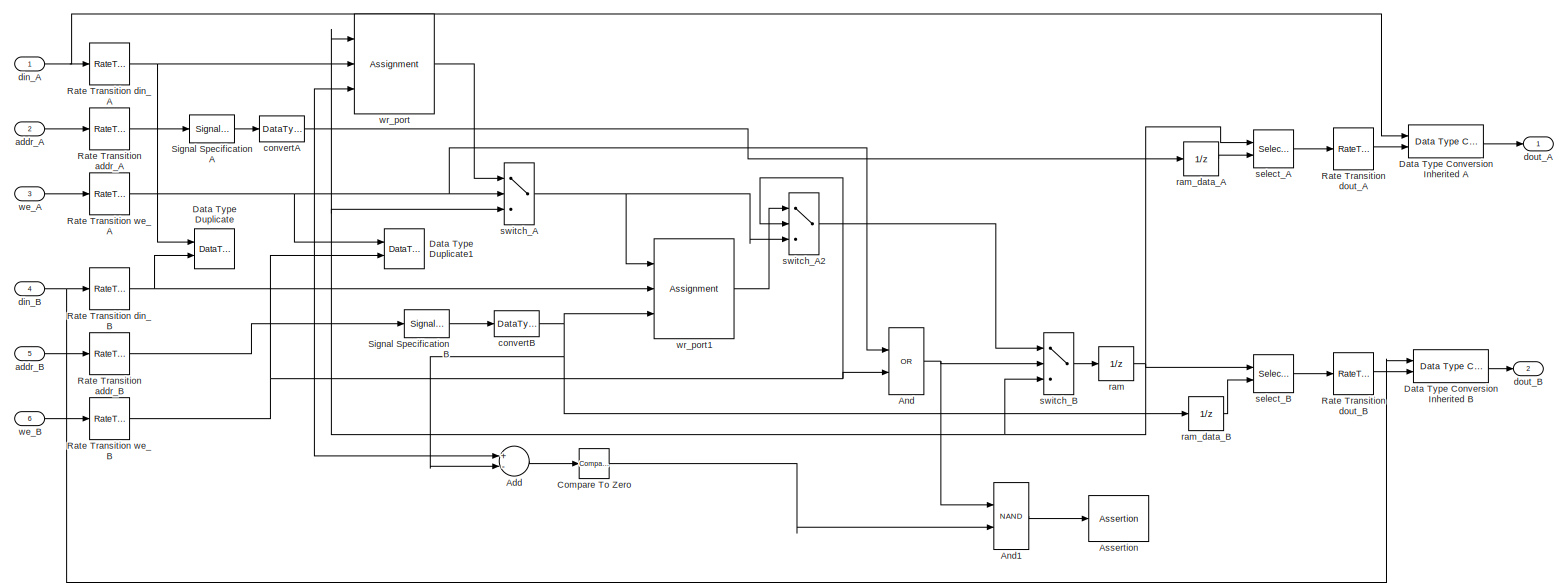
[diagram: HDL RAMs/Dual Rate Dual Port RAM - part 1/1, most of the canvas]
BLOCK [SubSystem] HDL RAMs/Dual Rate Dual Port RAM
  Ports = [6, 2]
  RequestExecContextInheritance = off
BLOCK [Sum] HDL RAMs/Dual Rate Dual Port RAM/Add
  InputSameDT = off
  Inputs = +-
  OutDataTypeStr = Inherit: Inherit via internal rule
  Ports = [2, 1]
  SaturateOnIntegerOverflow = off
BLOCK [Logic] HDL RAMs/Dual Rate Dual Port RAM/And
  AllPortsSameDT = off
  Operator = OR
  OutDataTypeStr = boolean
  Ports = [2, 1]
BLOCK [Logic] HDL RAMs/Dual Rate Dual Port RAM/And1
  AllPortsSameDT = off
  Operator = NAND
  OutDataTypeStr = boolean
  Ports = [2, 1]
BLOCK [Assertion] HDL RAMs/Dual Rate Dual Port RAM/Assertion
BLOCK [Reference] HDL RAMs/Dual Rate Dual Port RAM/Compare To Zero  REF=simulink/Logic and Bit
Operations/Compare
To Zero
  Ports = [1, 1]
  SourceBlock = simulink/Logic and Bit\nOperations/Compare\nTo Zero
  SourceProductBaseCode = SL
  SourceProductName = Simulink
  SourceType = Compare To Zero
BLOCK [Reference] HDL RAMs/Dual Rate Dual Port RAM/Data Type Conversion Inherited A  REF=simulink/Signal
Attributes/Data Type
Conversion
Inherited
  Ports = [2, 1]
  SourceBlock = simulink/Signal\nAttributes/Data Type\nConversion\nInherited
  SourceProductBaseCode = SL
  SourceProductName = Simulink
  SourceType = Conversion Inherited
BLOCK [Reference] HDL RAMs/Dual Rate Dual Port RAM/Data Type Conversion Inherited B  REF=simulink/Signal
Attributes/Data Type
Conversion
Inherited
  Ports = [2, 1]
  SourceBlock = simulink/Signal\nAttributes/Data Type\nConversion\nInherited
  SourceProductBaseCode = SL
  SourceProductName = Simulink
  SourceType = Conversion Inherited
BLOCK [DataTypeDuplicate] HDL RAMs/Dual Rate Dual Port RAM/Data Type Duplicate
  Ports = [2]
BLOCK [DataTypeDuplicate] HDL RAMs/Dual Rate Dual Port RAM/Data Type Duplicate1
  Ports = [2]
BLOCK [RateTransition] HDL RAMs/Dual Rate Dual Port RAM/Rate Transition addr_A
  Integrity = off
BLOCK [RateTransition] HDL RAMs/Dual Rate Dual Port RAM/Rate Transition addr_B
  Integrity = off
BLOCK [RateTransition] HDL RAMs/Dual Rate Dual Port RAM/Rate Transition din_A
  Integrity = off
BLOCK [RateTransition] HDL RAMs/Dual Rate Dual Port RAM/Rate Transition din_B
  Integrity = off
BLOCK [RateTransition] HDL RAMs/Dual Rate Dual Port RAM/Rate Transition dout_A
  Integrity = off
BLOCK [RateTransition] HDL RAMs/Dual Rate Dual Port RAM/Rate Transition dout_B
  Integrity = off
BLOCK [RateTransition] HDL RAMs/Dual Rate Dual Port RAM/Rate Transition we_A
  Integrity = off
BLOCK [RateTransition] HDL RAMs/Dual Rate Dual Port RAM/Rate Transition we_B
  Integrity = off
BLOCK [SignalSpecification] HDL RAMs/Dual Rate Dual Port RAM/Signal SpecificationA
  Dimensions = 1
  OutDataTypeStr = fixdt(0,ram_size,0)
BLOCK [SignalSpecification] HDL RAMs/Dual Rate Dual Port RAM/Signal SpecificationB
  Dimensions = 1
  OutDataTypeStr = fixdt(0,ram_size,0)
BLOCK [Inport] HDL RAMs/Dual Rate Dual Port RAM/addr_A
  IconDisplay = Port number
  Port = 2
BLOCK [Inport] HDL RAMs/Dual Rate Dual Port RAM/addr_B
  IconDisplay = Port number
  Port = 5
BLOCK [DataTypeConversion] HDL RAMs/Dual Rate Dual Port RAM/convertA
  RndMeth = Floor
  SaturateOnIntegerOverflow = off
BLOCK [DataTypeConversion] HDL RAMs/Dual Rate Dual Port RAM/convertB
  RndMeth = Floor
  SaturateOnIntegerOverflow = off
BLOCK [Inport] HDL RAMs/Dual Rate Dual Port RAM/din_A
  IconDisplay = Port number
BLOCK [Inport] HDL RAMs/Dual Rate Dual Port RAM/din_B
  IconDisplay = Port number
  Port = 4
BLOCK [Outport] HDL RAMs/Dual Rate Dual Port RAM/dout_A
  IconDisplay = Port number
BLOCK [Outport] HDL RAMs/Dual Rate Dual Port RAM/dout_B
  IconDisplay = Port number
  Port = 2
BLOCK [UnitDelay] HDL RAMs/Dual Rate Dual Port RAM/ram
  HasFrameUpgradeWarning = on
  SampleTime = -1
BLOCK [UnitDelay] HDL RAMs/Dual Rate Dual Port RAM/ram_data_A
  HasFrameUpgradeWarning = on
  SampleTime = -1
BLOCK [UnitDelay] HDL RAMs/Dual Rate Dual Port RAM/ram_data_B
  HasFrameUpgradeWarning = on
  SampleTime = -1
BLOCK [Selector] HDL RAMs/Dual Rate Dual Port RAM/select_A
  IndexMode = Zero-based
  IndexOptions = Index vector (port)
  Indices = [1 3]
  InputPortWidth = 2^ram_size
  OutputSizes = 1
  Ports = [2, 1]
BLOCK [Selector] HDL RAMs/Dual Rate Dual Port RAM/select_B
  IndexMode = Zero-based
  IndexOptions = Index vector (port)
  Indices = [1 3]
  InputPortWidth = 2^ram_size
  OutputSizes = 1
  Ports = [2, 1]
BLOCK [Switch] HDL RAMs/Dual Rate Dual Port RAM/switch_A
  Criteria = u2 ~= 0
  InputSameDT = off
  SaturateOnIntegerOverflow = off
BLOCK [Switch] HDL RAMs/Dual Rate Dual Port RAM/switch_A2
  Criteria = u2 ~= 0
  InputSameDT = off
  SaturateOnIntegerOverflow = off
BLOCK [Switch] HDL RAMs/Dual Rate Dual Port RAM/switch_B
  Criteria = u2 ~= 0
  InputSameDT = off
  SaturateOnIntegerOverflow = off
BLOCK [Inport] HDL RAMs/Dual Rate Dual Port RAM/we_A
  IconDisplay = Port number
  OutDataTypeStr = boolean
  Port = 3
BLOCK [Inport] HDL RAMs/Dual Rate Dual Port RAM/we_B
  IconDisplay = Port number
  OutDataTypeStr = boolean
  Port = 6
BLOCK [Assignment] HDL RAMs/Dual Rate Dual Port RAM/wr_port
  IndexMode = Zero-based
  IndexOptions = Index vector (port)
  Indices = 1
  OutputSizes = [1 1]
  Ports = [3, 1]
BLOCK [Assignment] HDL RAMs/Dual Rate Dual Port RAM/wr_port1
  IndexMode = Zero-based
  IndexOptions = Index vector (port)
  Indices = 1
  OutputSizes = [1 1]
  Ports = [3, 1]
BLOCK [SubSystem] HDL RAMs/HDL FIFO
  ErrorFcn = hdlblkmask_fifo_updatemsg
  Ports = [3, 4]
  RequestExecContextInheritance = off
BLOCK [SubSystem] HDL RAMs/HDL FIFO/AdjustSampleOutNum
  Ports = [2, 1]
  RequestExecContextInheritance = off
BLOCK [SubSystem] HDL RAMs/HDL FIFO/AdjustSampleOutNum/AddSatOff
  Ports = [2, 1]
  RequestExecContextInheritance = off
BLOCK [Sum] HDL RAMs/HDL FIFO/AdjustSampleOutNum/AddSatOff/Add
  InputSameDT = off
  OutDataTypeStr = fixdt(0, 5, 0,'DataTypeOverride', 'Off')
  Ports = [2, 1]
  SaturateOnIntegerOverflow = off
BLOCK [Reference] HDL RAMs/HDL FIFO/AdjustSampleOutNum/AddSatOff/Bitwise Operator  REF=simulink/Logic and Bit
Operations/Bitwise
Operator
  Ports = [1, 1]
  SourceBlock = simulink/Logic and Bit\nOperations/Bitwise\nOperator
  SourceProductBaseCode = SL
  SourceProductName = Simulink
  SourceType = Bitwise Operator
BLOCK [DataTypeConversion] HDL RAMs/HDL FIFO/AdjustSampleOutNum/AddSatOff/Data Type Conversion
  OutDataTypeStr = fixdt(0,4,0,'DataTypeOverride', 'Off')
  RndMeth = Floor
  SaturateOnIntegerOverflow = off
BLOCK [Inport] HDL RAMs/HDL FIFO/AdjustSampleOutNum/AddSatOff/In1
  IconDisplay = Port number
BLOCK [Inport] HDL RAMs/HDL FIFO/AdjustSampleOutNum/AddSatOff/In2
  IconDisplay = Port number
  Port = 2
BLOCK [Outport] HDL RAMs/HDL FIFO/AdjustSampleOutNum/AddSatOff/Out
  IconDisplay = Port number
BLOCK [Inport] HDL RAMs/HDL FIFO/AdjustSampleOutNum/IsPop
  IconDisplay = Port number
BLOCK [Constant] HDL RAMs/HDL FIFO/AdjustSampleOutNum/NumConstant
  OutDataTypeStr = fixdt(0,4,0,'DataTypeOverride', 'Off')
  Value = 15
BLOCK [Switch] HDL RAMs/HDL FIFO/AdjustSampleOutNum/Switch
  Criteria = u2 ~= 0
  InputSameDT = off
  SaturateOnIntegerOverflow = off
BLOCK [Outport] HDL RAMs/HDL FIFO/AdjustSampleOutNum/adjustedSampleOutNum
  IconDisplay = Port number
BLOCK [Inport] HDL RAMs/HDL FIFO/AdjustSampleOutNum/sampleOutNum
  IconDisplay = Port number
  Port = 2
BLOCK [Reference] HDL RAMs/HDL FIFO/Compare To Zero  REF=simulink/Logic and Bit
Operations/Compare
To Zero
  Ports = [1, 1]
  SourceBlock = simulink/Logic and Bit\nOperations/Compare\nTo Zero
  SourceProductBaseCode = SL
  SourceProductName = Simulink
  SourceType = Compare To Zero
BLOCK [SubSystem] HDL RAMs/HDL FIFO/ControlSignalsValidation
  Ports = [3, 6]
  RequestExecContextInheritance = off
BLOCK [Assertion] HDL RAMs/HDL FIFO/ControlSignalsValidation/Assertion PopEmpty
  AssertionFailFcn = warning(message('hdlsllib:hdlsllib:FIFOPopEmpty'))
  StopWhenAssertionFail = off
BLOCK [Assertion] HDL RAMs/HDL FIFO/ControlSignalsValidation/Assertion PushOntoFull
  AssertionFailFcn = warning(message('hdlsllib:hdlsllib:FIFOPushFull'))
  StopWhenAssertionFail = off
BLOCK [Logic] HDL RAMs/HDL FIFO/ControlSignalsValidation/IsNotValidPopCheck
  AllPortsSameDT = off
  Operator = NOT
  OutDataTypeStr = boolean
  Ports = [1, 1]
BLOCK [Logic] HDL RAMs/HDL FIFO/ControlSignalsValidation/IsNotValidPushCheck
  AllPortsSameDT = off
  Operator = NOT
  OutDataTypeStr = boolean
  Ports = [1, 1]
BLOCK [Logic] HDL RAMs/HDL FIFO/ControlSignalsValidation/NotPop
  AllPortsSameDT = off
  Operator = NOT
  OutDataTypeStr = boolean
  Ports = [1, 1]
BLOCK [Inport] HDL RAMs/HDL FIFO/ControlSignalsValidation/Pop
  IconDisplay = Port number
  Port = 2
BLOCK [Inport] HDL RAMs/HDL FIFO/ControlSignalsValidation/Push
  IconDisplay = Port number
BLOCK [Logic] HDL RAMs/HDL FIFO/ControlSignalsValidation/checkPopEmpty
  AllPortsSameDT = off
  Operator = NAND
  OutDataTypeStr = boolean
  Ports = [2, 1]
BLOCK [Logic] HDL RAMs/HDL FIFO/ControlSignalsValidation/checkPushOntoFull
  AllPortsSameDT = off
  Inputs = 3
  Operator = NAND
  OutDataTypeStr = boolean
  Ports = [3, 1]
BLOCK [Outport] HDL RAMs/HDL FIFO/ControlSignalsValidation/isEmpty
  IconDisplay = Port number
  Port = 6
BLOCK [Reference] HDL RAMs/HDL FIFO/ControlSignalsValidation/isEmptyCheck  REF=simulink/Logic and Bit
Operations/Compare
To Zero
  Ports = [1, 1]
  SourceBlock = simulink/Logic and Bit\nOperations/Compare\nTo Zero
  SourceProductBaseCode = SL
  SourceProductName = Simulink
  SourceType = Compare To Zero
BLOCK [Outport] HDL RAMs/HDL FIFO/ControlSignalsValidation/isFull
  IconDisplay = Port number
  Port = 5
BLOCK [Reference] HDL RAMs/HDL FIFO/ControlSignalsValidation/isFullCheck  REF=simulink/Logic and Bit
Operations/Compare
To Constant
  Ports = [1, 1]
  SourceBlock = simulink/Logic and Bit\nOperations/Compare\nTo Constant
  SourceProductBaseCode = SL
  SourceProductName = Simulink
  SourceType = Compare To Constant
BLOCK [Logic] HDL RAMs/HDL FIFO/ControlSignalsValidation/isNotEmpty
  AllPortsSameDT = off
  Operator = NOT
  OutDataTypeStr = boolean
  Ports = [1, 1]
BLOCK [Logic] HDL RAMs/HDL FIFO/ControlSignalsValidation/isNotFull
  AllPortsSameDT = off
  Operator = NOT
  OutDataTypeStr = boolean
  Ports = [1, 1]
BLOCK [Outport] HDL RAMs/HDL FIFO/ControlSignalsValidation/isOnlyValidPop
  IconDisplay = Port number
  Port = 4
BLOCK [Logic] HDL RAMs/HDL FIFO/ControlSignalsValidation/isOnlyValidPopCheck
  AllPortsSameDT = off
  OutDataTypeStr = boolean
  Ports = [2, 1]
BLOCK [Outport] HDL RAMs/HDL FIFO/ControlSignalsValidation/isOnlyValidPush
  IconDisplay = Port number
  Port = 3
BLOCK [Logic] HDL RAMs/HDL FIFO/ControlSignalsValidation/isOnlyValidPushCheck
  AllPortsSameDT = off
  OutDataTypeStr = boolean
  Ports = [2, 1]
BLOCK [Logic] HDL RAMs/HDL FIFO/ControlSignalsValidation/isPopORNotFull
  AllPortsSameDT = off
  Operator = OR
  OutDataTypeStr = boolean
  Ports = [2, 1]
BLOCK [Outport] HDL RAMs/HDL FIFO/ControlSignalsValidation/isValidPop
  IconDisplay = Port number
  Port = 2
BLOCK [Logic] HDL RAMs/HDL FIFO/ControlSignalsValidation/isValidPopCheck
  AllPortsSameDT = off
  OutDataTypeStr = boolean
  Ports = [2, 1]
BLOCK [Outport] HDL RAMs/HDL FIFO/ControlSignalsValidation/isValidPush
  IconDisplay = Port number
BLOCK [Logic] HDL RAMs/HDL FIFO/ControlSignalsValidation/isValidPushCheck
  AllPortsSameDT = off
  OutDataTypeStr = boolean
  Ports = [2, 1]
BLOCK [Inport] HDL RAMs/HDL FIFO/ControlSignalsValidation/numOut
  IconDisplay = Port number
  Port = 3
BLOCK [DataTypeConversion] HDL RAMs/HDL FIFO/Data Type Conversion
  RndMeth = Floor
  SaturateOnIntegerOverflow = off
BLOCK [DataTypeConversion] HDL RAMs/HDL FIFO/Data Type Conversion1
  RndMeth = Floor
  SaturateOnIntegerOverflow = off
BLOCK [DataTypeDuplicate] HDL RAMs/HDL FIFO/Data Type Duplicate
  Ports = [2]
BLOCK [RateTransition] HDL RAMs/HDL FIFO/Downsample
  OutPortSampleTimeMultiple = ratio
  OutPortSampleTimeOpt = Multiple of input port sample time
BLOCK [Outport] HDL RAMs/HDL FIFO/Empty
  IconDisplay = Port number
  Port = 2
  PortDimensions = 1
BLOCK [Outport] HDL RAMs/HDL FIFO/Full
  IconDisplay = Port number
  Port = 3
  PortDimensions = 1
BLOCK [Inport] HDL RAMs/HDL FIFO/In
  IconDisplay = Port number
  PortDimensions = 1
BLOCK [SubSystem] HDL RAMs/HDL FIFO/NextSampleOutNum
  Ports = [2, 1]
  RequestExecContextInheritance = off
BLOCK [SubSystem] HDL RAMs/HDL FIFO/NextSampleOutNum/AddSatOff
  Ports = [2, 1]
  RequestExecContextInheritance = off
BLOCK [Sum] HDL RAMs/HDL FIFO/NextSampleOutNum/AddSatOff/Add
  InputSameDT = off
  OutDataTypeStr = fixdt(0, 5, 0,'DataTypeOverride', 'Off')
  Ports = [2, 1]
  SaturateOnIntegerOverflow = off
BLOCK [Reference] HDL RAMs/HDL FIFO/NextSampleOutNum/AddSatOff/Bitwise Operator  REF=simulink/Logic and Bit
Operations/Bitwise
Operator
  Ports = [1, 1]
  SourceBlock = simulink/Logic and Bit\nOperations/Bitwise\nOperator
  SourceProductBaseCode = SL
  SourceProductName = Simulink
  SourceType = Bitwise Operator
BLOCK [DataTypeConversion] HDL RAMs/HDL FIFO/NextSampleOutNum/AddSatOff/Data Type Conversion
  OutDataTypeStr = fixdt(0,4,0,'DataTypeOverride', 'Off')
  RndMeth = Floor
  SaturateOnIntegerOverflow = off
BLOCK [Inport] HDL RAMs/HDL FIFO/NextSampleOutNum/AddSatOff/In1
  IconDisplay = Port number
BLOCK [Inport] HDL RAMs/HDL FIFO/NextSampleOutNum/AddSatOff/In2
  IconDisplay = Port number
  Port = 2
BLOCK [Outport] HDL RAMs/HDL FIFO/NextSampleOutNum/AddSatOff/Out
  IconDisplay = Port number
BLOCK [Constant] HDL RAMs/HDL FIFO/NextSampleOutNum/IncrConstant
  OutDataTypeStr = fixdt(0,4,0,'DataTypeOverride', 'Off')
BLOCK [Inport] HDL RAMs/HDL FIFO/NextSampleOutNum/IsPush
  IconDisplay = Port number
BLOCK [Switch] HDL RAMs/HDL FIFO/NextSampleOutNum/Switch
  Criteria = u2 ~= 0
  InputSameDT = off
  SaturateOnIntegerOverflow = off
BLOCK [Inport] HDL RAMs/HDL FIFO/NextSampleOutNum/adjustedSampleOutNum
  IconDisplay = Port number
  Port = 2
BLOCK [Outport] HDL RAMs/HDL FIFO/NextSampleOutNum/nextSampleOutNum
  IconDisplay = Port number
BLOCK [Outport] HDL RAMs/HDL FIFO/Num
  IconDisplay = Port number
  Port = 4
  PortDimensions = 1
BLOCK [Outport] HDL RAMs/HDL FIFO/Out
  IconDisplay = Port number
  PortDimensions = 1
BLOCK [Inport] HDL RAMs/HDL FIFO/Pop
  IconDisplay = Port number
  Port = 3
  PortDimensions = 1
BLOCK [SubSystem] HDL RAMs/HDL FIFO/PopIdx
  Ports = [1, 1]
  RequestExecContextInheritance = off
BLOCK [SubSystem] HDL RAMs/HDL FIFO/PopIdx/AddSatOff
  Ports = [2, 1]
  RequestExecContextInheritance = off
BLOCK [Sum] HDL RAMs/HDL FIFO/PopIdx/AddSatOff/Add
  InputSameDT = off
  OutDataTypeStr = fixdt(0, 5, 0,'DataTypeOverride', 'Off')
  Ports = [2, 1]
  SaturateOnIntegerOverflow = off
BLOCK [Reference] HDL RAMs/HDL FIFO/PopIdx/AddSatOff/Bitwise Operator  REF=simulink/Logic and Bit
Operations/Bitwise
Operator
  Ports = [1, 1]
  SourceBlock = simulink/Logic and Bit\nOperations/Bitwise\nOperator
  SourceProductBaseCode = SL
  SourceProductName = Simulink
  SourceType = Bitwise Operator
BLOCK [DataTypeConversion] HDL RAMs/HDL FIFO/PopIdx/AddSatOff/Data Type Conversion
  OutDataTypeStr = fixdt(0,4,0,'DataTypeOverride', 'Off')
  RndMeth = Floor
  SaturateOnIntegerOverflow = off
BLOCK [Inport] HDL RAMs/HDL FIFO/PopIdx/AddSatOff/In1
  IconDisplay = Port number
BLOCK [Inport] HDL RAMs/HDL FIFO/PopIdx/AddSatOff/In2
  IconDisplay = Port number
  Port = 2
BLOCK [Outport] HDL RAMs/HDL FIFO/PopIdx/AddSatOff/Out
  IconDisplay = Port number
BLOCK [Constant] HDL RAMs/HDL FIFO/PopIdx/AddrAdjustConstant
  OutDataTypeStr = fixdt(0,4,0,'DataTypeOverride', 'Off')
  Value = 7
BLOCK [Reference] HDL RAMs/HDL FIFO/PopIdx/Compare To Constant  REF=simulink/Logic and Bit
Operations/Compare
To Constant
  Ports = [1, 1]
  SourceBlock = simulink/Logic and Bit\nOperations/Compare\nTo Constant
  SourceProductBaseCode = SL
  SourceProductName = Simulink
  SourceType = Compare To Constant
BLOCK [Constant] HDL RAMs/HDL FIFO/PopIdx/IncrConstant
  OutDataTypeStr = fixdt(0,4,0,'DataTypeOverride', 'Off')
BLOCK [Switch] HDL RAMs/HDL FIFO/PopIdx/Switch1
  Criteria = u2 ~= 0
  InputSameDT = off
  SaturateOnIntegerOverflow = off
BLOCK [Inport] HDL RAMs/HDL FIFO/PopIdx/action
  IconDisplay = Port number
BLOCK [Switch] HDL RAMs/HDL FIFO/PopIdx/adjust_idx_mux
  Criteria = u2 ~= 0
  InputSameDT = off
  SaturateOnIntegerOverflow = off
BLOCK [Delay] HDL RAMs/HDL FIFO/PopIdx/dir_reg
  DelayLength = 1
  InitialCondition = 1
  InputPortMap = u0
  Ports = [1, 1]
BLOCK [Outport] HDL RAMs/HDL FIFO/PopIdx/idx
  IconDisplay = Port number
BLOCK [Delay] HDL RAMs/HDL FIFO/PopIdx/idx_reg
  DelayLength = 1
  InitialCondition = 0
  InputPortMap = u0
  Ports = [1, 1]
BLOCK [Inport] HDL RAMs/HDL FIFO/Push
  IconDisplay = Port number
  Port = 2
  PortDimensions = 1
BLOCK [SubSystem] HDL RAMs/HDL FIFO/PushIdx
  Ports = [1, 1]
  RequestExecContextInheritance = off
BLOCK [SubSystem] HDL RAMs/HDL FIFO/PushIdx/AddSatOff
  Ports = [2, 1]
  RequestExecContextInheritance = off
BLOCK [Sum] HDL RAMs/HDL FIFO/PushIdx/AddSatOff/Add
  InputSameDT = off
  OutDataTypeStr = fixdt(0, 5, 0,'DataTypeOverride', 'Off')
  Ports = [2, 1]
  SaturateOnIntegerOverflow = off
BLOCK [Reference] HDL RAMs/HDL FIFO/PushIdx/AddSatOff/Bitwise Operator  REF=simulink/Logic and Bit
Operations/Bitwise
Operator
  Ports = [1, 1]
  SourceBlock = simulink/Logic and Bit\nOperations/Bitwise\nOperator
  SourceProductBaseCode = SL
  SourceProductName = Simulink
  SourceType = Bitwise Operator
BLOCK [DataTypeConversion] HDL RAMs/HDL FIFO/PushIdx/AddSatOff/Data Type Conversion
  OutDataTypeStr = fixdt(0,4,0,'DataTypeOverride', 'Off')
  RndMeth = Floor
  SaturateOnIntegerOverflow = off
BLOCK [Inport] HDL RAMs/HDL FIFO/PushIdx/AddSatOff/In1
  IconDisplay = Port number
BLOCK [Inport] HDL RAMs/HDL FIFO/PushIdx/AddSatOff/In2
  IconDisplay = Port number
  Port = 2
BLOCK [Outport] HDL RAMs/HDL FIFO/PushIdx/AddSatOff/Out
  IconDisplay = Port number
BLOCK [Constant] HDL RAMs/HDL FIFO/PushIdx/AddrAdjustConstant
  OutDataTypeStr = fixdt(0,4,0,'DataTypeOverride', 'Off')
  Value = 7
BLOCK [Reference] HDL RAMs/HDL FIFO/PushIdx/Compare To Constant  REF=simulink/Logic and Bit
Operations/Compare
To Constant
  Ports = [1, 1]
  SourceBlock = simulink/Logic and Bit\nOperations/Compare\nTo Constant
  SourceProductBaseCode = SL
  SourceProductName = Simulink
  SourceType = Compare To Constant
BLOCK [Constant] HDL RAMs/HDL FIFO/PushIdx/IncrConstant
  OutDataTypeStr = fixdt(0,4,0,'DataTypeOverride', 'Off')
BLOCK [Switch] HDL RAMs/HDL FIFO/PushIdx/Switch1
  Criteria = u2 ~= 0
  InputSameDT = off
  SaturateOnIntegerOverflow = off
BLOCK [Inport] HDL RAMs/HDL FIFO/PushIdx/action
  IconDisplay = Port number
BLOCK [Switch] HDL RAMs/HDL FIFO/PushIdx/adjust_idx_mux
  Criteria = u2 ~= 0
  InputSameDT = off
  SaturateOnIntegerOverflow = off
BLOCK [Delay] HDL RAMs/HDL FIFO/PushIdx/dir_reg
  DelayLength = 1
  InitialCondition = 1
  InputPortMap = u0
  Ports = [1, 1]
BLOCK [Outport] HDL RAMs/HDL FIFO/PushIdx/idx
  IconDisplay = Port number
BLOCK [Delay] HDL RAMs/HDL FIFO/PushIdx/idx_reg
  DelayLength = 1
  InitialCondition = 0
  InputPortMap = u0
  Ports = [1, 1]
BLOCK [Reference] HDL RAMs/HDL FIFO/Simple Dual Port RAM  REF=$bdroot/HDL RAMs/Simple Dual Port RAM
  Ports = [4, 1]
  SourceBlock = $bdroot/HDL RAMs/Simple Dual Port RAM
  SourceType = Simple Dual-port RAM
BLOCK [Switch] HDL RAMs/HDL FIFO/Switch
  Criteria = u2 ~= 0
  InputSameDT = off
  SaturateOnIntegerOverflow = off
BLOCK [Switch] HDL RAMs/HDL FIFO/Switch2
  Criteria = u2 ~= 0
  InputSameDT = off
  SaturateOnIntegerOverflow = off
BLOCK [SubSystem] HDL RAMs/HDL FIFO/Upsample
  Ports = [1, 1]
  RequestExecContextInheritance = off
BLOCK [Reference] HDL RAMs/HDL FIFO/Upsample/Compare To Constant  REF=simulink/Logic and Bit
Operations/Compare
To Constant
  Ports = [1, 1]
  SourceBlock = simulink/Logic and Bit\nOperations/Compare\nTo Constant
  SourceProductBaseCode = SL
  SourceProductName = Simulink
  SourceType = Compare To Constant
BLOCK [Reference] HDL RAMs/HDL FIFO/Upsample/Counter  REF=simulink/Sources/Counter
Limited
  Ports = [0, 1]
  SourceBlock = simulink/Sources/Counter\nLimited
  SourceProductBaseCode = SL
  SourceProductName = Simulink
  SourceType = Counter Limited
BLOCK [Reference] HDL RAMs/HDL FIFO/Upsample/Data Type Conversion Inherited  REF=simulink/Signal
Attributes/Data Type
Conversion
Inherited
  Ports = [2, 1]
  SourceBlock = simulink/Signal\nAttributes/Data Type\nConversion\nInherited
  SourceProductBaseCode = SL
  SourceProductName = Simulink
  SourceType = Conversion Inherited
BLOCK [Gain] HDL RAMs/HDL FIFO/Upsample/Gain
  Gain = 0
  ParamDataTypeStr = Inherit: Inherit via internal rule
  SaturateOnIntegerOverflow = off
BLOCK [Inport] HDL RAMs/HDL FIFO/Upsample/In
  IconDisplay = Port number
BLOCK [Outport] HDL RAMs/HDL FIFO/Upsample/Out
  IconDisplay = Port number
BLOCK [RateTransition] HDL RAMs/HDL FIFO/Upsample/Rate Transition
  Integrity = off
  OutPortSampleTime = upVal
  OutPortSampleTimeOpt = Multiple of input port sample time
BLOCK [Switch] HDL RAMs/HDL FIFO/Upsample/Switch
  Criteria = u2 ~= 0
  InputSameDT = off
  SaturateOnIntegerOverflow = off
BLOCK [Terminator] HDL RAMs/HDL FIFO/Upsample/Terminator
BLOCK [SubSystem] HDL RAMs/HDL FIFO/Upsample1
  Ports = [1, 1]
  RequestExecContextInheritance = off
BLOCK [Reference] HDL RAMs/HDL FIFO/Upsample1/Compare To Constant  REF=simulink/Logic and Bit
Operations/Compare
To Constant
  Ports = [1, 1]
  SourceBlock = simulink/Logic and Bit\nOperations/Compare\nTo Constant
  SourceProductBaseCode = SL
  SourceProductName = Simulink
  SourceType = Compare To Constant
BLOCK [Reference] HDL RAMs/HDL FIFO/Upsample1/Counter  REF=simulink/Sources/Counter
Limited
  Ports = [0, 1]
  SourceBlock = simulink/Sources/Counter\nLimited
  SourceProductBaseCode = SL
  SourceProductName = Simulink
  SourceType = Counter Limited
BLOCK [Reference] HDL RAMs/HDL FIFO/Upsample1/Data Type Conversion Inherited  REF=simulink/Signal
Attributes/Data Type
Conversion
Inherited
  Ports = [2, 1]
  SourceBlock = simulink/Signal\nAttributes/Data Type\nConversion\nInherited
  SourceProductBaseCode = SL
  SourceProductName = Simulink
  SourceType = Conversion Inherited
BLOCK [Gain] HDL RAMs/HDL FIFO/Upsample1/Gain
  Gain = 0
  ParamDataTypeStr = Inherit: Inherit via internal rule
  SaturateOnIntegerOverflow = off
BLOCK [Inport] HDL RAMs/HDL FIFO/Upsample1/In
  IconDisplay = Port number
BLOCK [Outport] HDL RAMs/HDL FIFO/Upsample1/Out
  IconDisplay = Port number
BLOCK [RateTransition] HDL RAMs/HDL FIFO/Upsample1/Rate Transition
  Integrity = off
  OutPortSampleTime = upVal
  OutPortSampleTimeOpt = Multiple of input port sample time
BLOCK [Switch] HDL RAMs/HDL FIFO/Upsample1/Switch
  Criteria = u2 ~= 0
  InputSameDT = off
  SaturateOnIntegerOverflow = off
BLOCK [Terminator] HDL RAMs/HDL FIFO/Upsample1/Terminator
BLOCK [SubSystem] HDL RAMs/HDL FIFO/Upsample2
  Ports = [1, 1]
  RequestExecContextInheritance = off
BLOCK [Reference] HDL RAMs/HDL FIFO/Upsample2/Compare To Constant  REF=simulink/Logic and Bit
Operations/Compare
To Constant
  Ports = [1, 1]
  SourceBlock = simulink/Logic and Bit\nOperations/Compare\nTo Constant
  SourceProductBaseCode = SL
  SourceProductName = Simulink
  SourceType = Compare To Constant
BLOCK [Reference] HDL RAMs/HDL FIFO/Upsample2/Counter  REF=simulink/Sources/Counter
Limited
  Ports = [0, 1]
  SourceBlock = simulink/Sources/Counter\nLimited
  SourceProductBaseCode = SL
  SourceProductName = Simulink
  SourceType = Counter Limited
BLOCK [Reference] HDL RAMs/HDL FIFO/Upsample2/Data Type Conversion Inherited  REF=simulink/Signal
Attributes/Data Type
Conversion
Inherited
  Ports = [2, 1]
  SourceBlock = simulink/Signal\nAttributes/Data Type\nConversion\nInherited
  SourceProductBaseCode = SL
  SourceProductName = Simulink
  SourceType = Conversion Inherited
BLOCK [Gain] HDL RAMs/HDL FIFO/Upsample2/Gain
  Gain = 0
  ParamDataTypeStr = Inherit: Inherit via internal rule
  SaturateOnIntegerOverflow = off
BLOCK [Inport] HDL RAMs/HDL FIFO/Upsample2/In
  IconDisplay = Port number
BLOCK [Outport] HDL RAMs/HDL FIFO/Upsample2/Out
  IconDisplay = Port number
BLOCK [RateTransition] HDL RAMs/HDL FIFO/Upsample2/Rate Transition
  Integrity = off
  OutPortSampleTime = upVal
  OutPortSampleTimeMultiple = 1/ratio
  OutPortSampleTimeOpt = Multiple of input port sample time
BLOCK [Switch] HDL RAMs/HDL FIFO/Upsample2/Switch
  Criteria = u2 ~= 0
  InputSameDT = off
  SaturateOnIntegerOverflow = off
BLOCK [Terminator] HDL RAMs/HDL FIFO/Upsample2/Terminator
BLOCK [Constant] HDL RAMs/HDL FIFO/noPop
  Value = 0
BLOCK [Delay] HDL RAMs/HDL FIFO/out_reg
  DelayLength = 1
  InitialCondition = 0
  InputPortMap = u0
  Ports = [1, 1]
BLOCK [Delay] HDL RAMs/HDL FIFO/outselect_reg
  DelayLength = 1
  InitialCondition = 0
  InputPortMap = u0
  Ports = [1, 1]
BLOCK [Delay] HDL RAMs/HDL FIFO/sampleOutNum
  DelayLength = 1
  InitialCondition = 0
  InputPortMap = u0
  Ports = [1, 1]
BLOCK [SubSystem] HDL RAMs/Simple Dual Port RAM
  Ports = [4, 1]
  RequestExecContextInheritance = off
BLOCK [MATLABSystem] HDL RAMs/Simple Dual Port RAM System
  MaskDisplay = disp(['Simple' char(10) 'Dual Port' char(10) 'RAM']);\nport_label('input',1,'din');\nport_label('input',2,'wr_addr');\nport_label('input',3,'wr_en');\nport_label('input',4,'rd_addr');\nport_label('output',1,'rd_dout');
  MaskType = hdl.RAM
  Ports = [4, 1]
  RAMInitialValue = 0
  RAMType = Simple dual port
  SimulateUsing = Code generation
  System = hdl.RAM
  WriteOutputValue = New data
BLOCK [SignalSpecification] HDL RAMs/Simple Dual Port RAM/Signal Specification
  Dimensions = 1
  OutDataTypeStr = fixdt(0,ram_size,0)
BLOCK [SignalSpecification] HDL RAMs/Simple Dual Port RAM/Signal Specification1
  Dimensions = 1
  OutDataTypeStr = fixdt(0,ram_size,0)
BLOCK [DataTypeConversion] HDL RAMs/Simple Dual Port RAM/convert
  RndMeth = Floor
  SaturateOnIntegerOverflow = off
BLOCK [DataTypeConversion] HDL RAMs/Simple Dual Port RAM/convert1
  RndMeth = Floor
  SaturateOnIntegerOverflow = off
BLOCK [UnitDelay] HDL RAMs/Simple Dual Port RAM/ram
  HasFrameUpgradeWarning = on
  SampleTime = -1
BLOCK [UnitDelay] HDL RAMs/Simple Dual Port RAM/ram_data
  HasFrameUpgradeWarning = on
  SampleTime = -1
BLOCK [Inport] HDL RAMs/Simple Dual Port RAM/rd_addr
  IconDisplay = Port number
  Port = 4
BLOCK [Outport] HDL RAMs/Simple Dual Port RAM/rd_dout
  IconDisplay = Port number
BLOCK [Selector] HDL RAMs/Simple Dual Port RAM/select
  IndexMode = Zero-based
  IndexOptions = Index vector (port)
  Indices = [1 3]
  InputPortWidth = 2^ram_size
  OutputSizes = 1
  Ports = [2, 1]
BLOCK [Switch] HDL RAMs/Simple Dual Port RAM/switch
  Criteria = u2 ~= 0
  InputSameDT = off
  SaturateOnIntegerOverflow = off
BLOCK [Inport] HDL RAMs/Simple Dual Port RAM/wr_addr
  IconDisplay = Port number
  Port = 2
BLOCK [Inport] HDL RAMs/Simple Dual Port RAM/wr_din
  IconDisplay = Port number
BLOCK [Inport] HDL RAMs/Simple Dual Port RAM/wr_en
  IconDisplay = Port number
  OutDataTypeStr = boolean
  Port = 3
BLOCK [Assignment] HDL RAMs/Simple Dual Port RAM/wr_port
  IndexMode = Zero-based
  IndexOptions = Index vector (port)
  Indices = 1
  OutputSizes = [1 1]
  Ports = [3, 1]
BLOCK [SubSystem] HDL RAMs/Single Port RAM
  Ports = [3, 1]
  RequestExecContextInheritance = off
BLOCK [MATLABSystem] HDL RAMs/Single Port RAM System
  MaskDisplay = disp(['Single Port' char(10) 'RAM']);\nport_label('input',1,'din');\nport_label('input',2,'addr');\nport_label('input',3,'wr_en');\nport_label('output',1,'dout');
  MaskType = hdl.RAM
  Ports = [3, 1]
  RAMInitialValue = 0
  RAMType = Single port
  SimulateUsing = Code generation
  System = hdl.RAM
  WriteOutputValue = New data
BLOCK [Logic] HDL RAMs/Single Port RAM/And
  AllPortsSameDT = off
  OutDataTypeStr = boolean
  Ports = [2, 1]
BLOCK [SignalSpecification] HDL RAMs/Single Port RAM/Signal Specification
  Dimensions = 1
  OutDataTypeStr = fixdt(0,ram_size,0)
BLOCK [Switch] HDL RAMs/Single Port RAM/Switch1
  Criteria = u2 ~= 0
  InputSameDT = off
  SaturateOnIntegerOverflow = off
BLOCK [Inport] HDL RAMs/Single Port RAM/addr
  IconDisplay = Port number
  Port = 2
BLOCK [DataTypeConversion] HDL RAMs/Single Port RAM/convert
  RndMeth = Floor
  SaturateOnIntegerOverflow = off
BLOCK [Inport] HDL RAMs/Single Port RAM/din
  IconDisplay = Port number
BLOCK [UnitDelay] HDL RAMs/Single Port RAM/din_d
  HasFrameUpgradeWarning = on
  SampleTime = -1
BLOCK [Outport] HDL RAMs/Single Port RAM/dout
  IconDisplay = Port number
BLOCK [Constant] HDL RAMs/Single Port RAM/dout_type
  Value = dout_type
BLOCK [Reference] HDL RAMs/Single Port RAM/is_new  REF=simulink/Logic and Bit
Operations/Compare
To Constant
  Ports = [1, 1]
  SourceBlock = simulink/Logic and Bit\nOperations/Compare\nTo Constant
  SourceProductBaseCode = SL
  SourceProductName = Simulink
  SourceType = Compare To Constant
BLOCK [UnitDelay] HDL RAMs/Single Port RAM/ram
  HasFrameUpgradeWarning = on
  SampleTime = -1
BLOCK [UnitDelay] HDL RAMs/Single Port RAM/ram_data
  HasFrameUpgradeWarning = on
  SampleTime = -1
BLOCK [Selector] HDL RAMs/Single Port RAM/select
  IndexMode = Zero-based
  IndexOptions = Index vector (port)
  Indices = [1 3]
  InputPortWidth = 2^ram_size
  OutputSizes = 1
  Ports = [2, 1]
BLOCK [Switch] HDL RAMs/Single Port RAM/switch
  Criteria = u2 ~= 0
  InputSameDT = off
  SaturateOnIntegerOverflow = off
BLOCK [Inport] HDL RAMs/Single Port RAM/we
  IconDisplay = Port number
  OutDataTypeStr = boolean
  Port = 3
BLOCK [UnitDelay] HDL RAMs/Single Port RAM/we_d
  HasFrameUpgradeWarning = on
  SampleTime = -1
BLOCK [Assignment] HDL RAMs/Single Port RAM/wr_port
  IndexMode = Zero-based
  IndexOptions = Index vector (port)
  Indices = 1
  OutputSizes = [1 1]
  Ports = [3, 1]
BLOCK [SubSystem] HDL Subsystems
  Ports = []
  RequestExecContextInheritance = off
BLOCK [SubSystem] HDL Subsystems/Enabled Synchronous Subsystem
  CopyFcn = set_param(gcbh,'LinkStatus','none'); set_param(gcbh,'Mask','off'); set_param(gcbh,'MaskType',''); set_param(gcbh,'MaskDescription',''); set_param(gcbh,'OpenFcn',''); set_param(gcbh,'CopyFcn','')  <repeated x4 — deduplicated; at blocks: Enabled Synchronous Subsystem, Resettable Synchronous Subsystem, Synchronous Subsystem, Ports & Subsystems>
  OpenFcn = open_system(gcbh,'force')
  Ports = [1, 1, 1]
  RequestExecContextInheritance = off
  TreatAsAtomicUnit = on
BLOCK [EnablePort] HDL Subsystems/Enabled Synchronous Subsystem/Enable
  Ports = []
BLOCK [Inport] HDL Subsystems/Enabled Synchronous Subsystem/In1
  IconDisplay = Port number
BLOCK [Outport] HDL Subsystems/Enabled Synchronous Subsystem/Out1
  IconDisplay = Port number
BLOCK [StateControl] HDL Subsystems/Enabled Synchronous Subsystem/State Control
  StateControl = Synchronous
BLOCK [SubSystem] HDL Subsystems/Resettable Synchronous Subsystem
  OpenFcn = open_system(gcbh,'force')
  Ports = [1, 1, 0, 0, 0, 0, 0, 0, 1]
  RequestExecContextInheritance = off
  TreatAsAtomicUnit = on
BLOCK [Inport] HDL Subsystems/Resettable Synchronous Subsystem/In1
  IconDisplay = Port number
BLOCK [Outport] HDL Subsystems/Resettable Synchronous Subsystem/Out1
  IconDisplay = Port number
BLOCK [ResetPort] HDL Subsystems/Resettable Synchronous Subsystem/Reset
  DisableCoverage = on
  ResetTriggerType = level hold
BLOCK [StateControl] HDL Subsystems/Resettable Synchronous Subsystem/State Control
  StateControl = Synchronous
BLOCK [StateControl] HDL Subsystems/State Control
  StateControl = Synchronous
BLOCK [SubSystem] HDL Subsystems/Synchronous Subsystem
  OpenFcn = open_system(gcbh,'force')
  Ports = [1, 1]
  RequestExecContextInheritance = off
BLOCK [Inport] HDL Subsystems/Synchronous Subsystem/In1
  IconDisplay = Port number
BLOCK [Outport] HDL Subsystems/Synchronous Subsystem/Out1
  IconDisplay = Port number
BLOCK [StateControl] HDL Subsystems/Synchronous Subsystem/State Control
  StateControl = Synchronous
BLOCK [SubSystem] Logic and Bit Operations
  Ports = []
  RequestExecContextInheritance = off
BLOCK [Reference] Logic and Bit Operations/Bit Clear  REF=simulink/Logic and Bit
Operations/Bit Clear
  Ports = [1, 1]
  SourceBlock = simulink/Logic and Bit\nOperations/Bit Clear
  SourceProductBaseCode = SL
  SourceProductName = Simulink
  SourceType = Bit Clear
BLOCK [SubSystem] Logic and Bit Operations/Bit Concat
  Ports = [2, 1]
  RequestExecContextInheritance = off
  TreatAsAtomicUnit = on
BLOCK [Reference] Logic and Bit Operations/Bit Concat/Bit Concat2  REF=hdlmdlgenlib/Bit Concat2
  Ports = [2, 1]
  SourceBlock = hdlmdlgenlib/Bit Concat2
  SourceProductBaseCode = SL
  SourceProductName = Simulink
  SourceType = Bit Concat
BLOCK [Inport] Logic and Bit Operations/Bit Concat/u1
  IconDisplay = Port number
BLOCK [Inport] Logic and Bit Operations/Bit Concat/u2
  IconDisplay = Port number
  Port = 2
BLOCK [Outport] Logic and Bit Operations/Bit Concat/y
  IconDisplay = Port number
BLOCK [SubSystem] Logic and Bit Operations/Bit Reduce
  Ports = [1, 1]
  RequestExecContextInheritance = off
  TreatAsAtomicUnit = on
BLOCK [SubSystem] Logic and Bit Operations/Bit Reduce/bit_reduce
  ErrorFcn = Stateflow.Translate.translate
  PermitHierarchicalResolution = ExplicitOnly
  Ports = [1, 1]
  RequestExecContextInheritance = off
  SFBlockType = MATLAB Function
BLOCK [Demux] Logic and Bit Operations/Bit Reduce/bit_reduce/ Demux 
  Outputs = 1
  Ports = [1, 1]
BLOCK [S-Function] Logic and Bit Operations/Bit Reduce/bit_reduce/ SFunction 
  EnableBusSupport = off
  FunctionName = sf_sfun
  Parameters = mode
  PortCounts = [1 2]
  Ports = [1, 2]
  SFcnIsStateOwnerBlock = off
  SFunctionDeploymentMode = off
  Tag = Stateflow S-Function hdlsllib 7
BLOCK [Terminator] Logic and Bit Operations/Bit Reduce/bit_reduce/ Terminator 
BLOCK [Inport] Logic and Bit Operations/Bit Reduce/bit_reduce/u
  IconDisplay = Port number
BLOCK [Outport] Logic and Bit Operations/Bit Reduce/bit_reduce/y
  IconDisplay = Port number
BLOCK [Inport] Logic and Bit Operations/Bit Reduce/u
  IconDisplay = Port number
BLOCK [Outport] Logic and Bit Operations/Bit Reduce/y
  IconDisplay = Port number
BLOCK [SubSystem] Logic and Bit Operations/Bit Rotate
  Ports = [1, 1]
  RequestExecContextInheritance = off
  TreatAsAtomicUnit = on
BLOCK [SubSystem] Logic and Bit Operations/Bit Rotate/bit_rotate
  ErrorFcn = Stateflow.Translate.translate
  PermitHierarchicalResolution = ExplicitOnly
  Ports = [1, 1]
  RequestExecContextInheritance = off
  SFBlockType = MATLAB Function
BLOCK [Demux] Logic and Bit Operations/Bit Rotate/bit_rotate/ Demux 
  Outputs = 1
  Ports = [1, 1]
BLOCK [S-Function] Logic and Bit Operations/Bit Rotate/bit_rotate/ SFunction 
  EnableBusSupport = off
  FunctionName = sf_sfun
  Parameters = N,mode
  PortCounts = [1 2]
  Ports = [1, 2]
  SFcnIsStateOwnerBlock = off
  SFunctionDeploymentMode = off
  Tag = Stateflow S-Function hdlsllib 8
BLOCK [Terminator] Logic and Bit Operations/Bit Rotate/bit_rotate/ Terminator 
BLOCK [Inport] Logic and Bit Operations/Bit Rotate/bit_rotate/u
  IconDisplay = Port number
BLOCK [Outport] Logic and Bit Operations/Bit Rotate/bit_rotate/y
  IconDisplay = Port number
BLOCK [Inport] Logic and Bit Operations/Bit Rotate/u
  IconDisplay = Port number
BLOCK [Outport] Logic and Bit Operations/Bit Rotate/y
  IconDisplay = Port number
BLOCK [Reference] Logic and Bit Operations/Bit Set  REF=simulink/Logic and Bit
Operations/Bit Set
  Ports = [1, 1]
  SourceBlock = simulink/Logic and Bit\nOperations/Bit Set
  SourceProductBaseCode = SL
  SourceProductName = Simulink
  SourceType = Bit Set
BLOCK [SubSystem] Logic and Bit Operations/Bit Shift
  Ports = [1, 1]
  RequestExecContextInheritance = off
  TreatAsAtomicUnit = on
BLOCK [SubSystem] Logic and Bit Operations/Bit Shift/bit_shift
  ErrorFcn = Stateflow.Translate.translate
  PermitHierarchicalResolution = ExplicitOnly
  Ports = [1, 1]
  RequestExecContextInheritance = off
  SFBlockType = MATLAB Function
BLOCK [Demux] Logic and Bit Operations/Bit Shift/bit_shift/ Demux 
  Outputs = 1
  Ports = [1, 1]
BLOCK [S-Function] Logic and Bit Operations/Bit Shift/bit_shift/ SFunction 
  EnableBusSupport = off
  FunctionName = sf_sfun
  Parameters = N,mode
  PortCounts = [1 2]
  Ports = [1, 2]
  SFcnIsStateOwnerBlock = off
  SFunctionDeploymentMode = off
  Tag = Stateflow S-Function hdlsllib 9
BLOCK [Terminator] Logic and Bit Operations/Bit Shift/bit_shift/ Terminator 
BLOCK [Inport] Logic and Bit Operations/Bit Shift/bit_shift/u
  IconDisplay = Port number
BLOCK [Outport] Logic and Bit Operations/Bit Shift/bit_shift/y
  IconDisplay = Port number
BLOCK [Inport] Logic and Bit Operations/Bit Shift/u
  IconDisplay = Port number
BLOCK [Outport] Logic and Bit Operations/Bit Shift/y
  IconDisplay = Port number
BLOCK [SubSystem] Logic and Bit Operations/Bit Slice
  Ports = [1, 1]
  RequestExecContextInheritance = off
  TreatAsAtomicUnit = on
BLOCK [SubSystem] Logic and Bit Operations/Bit Slice/bit_slice
  ErrorFcn = Stateflow.Translate.translate
  PermitHierarchicalResolution = ExplicitOnly
  Ports = [1, 1]
  RequestExecContextInheritance = off
  SFBlockType = MATLAB Function
BLOCK [Demux] Logic and Bit Operations/Bit Slice/bit_slice/ Demux 
  Outputs = 1
  Ports = [1, 1]
BLOCK [S-Function] Logic and Bit Operations/Bit Slice/bit_slice/ SFunction 
  EnableBusSupport = off
  FunctionName = sf_sfun
  Parameters = lidx,ridx
  PortCounts = [1 2]
  Ports = [1, 2]
  SFcnIsStateOwnerBlock = off
  SFunctionDeploymentMode = off
  Tag = Stateflow S-Function hdlsllib 6
BLOCK [Terminator] Logic and Bit Operations/Bit Slice/bit_slice/ Terminator 
BLOCK [Inport] Logic and Bit Operations/Bit Slice/bit_slice/u
  IconDisplay = Port number
BLOCK [Outport] Logic and Bit Operations/Bit Slice/bit_slice/y
  IconDisplay = Port number
BLOCK [Inport] Logic and Bit Operations/Bit Slice/u
  IconDisplay = Port number
BLOCK [Outport] Logic and Bit Operations/Bit Slice/y
  IconDisplay = Port number
BLOCK [Reference] Logic and Bit Operations/Bitwise Operator  REF=simulink/Logic and Bit
Operations/Bitwise
Operator
  Ports = [1, 1]
  SourceBlock = simulink/Logic and Bit\nOperations/Bitwise\nOperator
  SourceProductBaseCode = SL
  SourceProductName = Simulink
  SourceType = Bitwise Operator
BLOCK [Reference] Logic and Bit Operations/Compare To Constant  REF=simulink/Logic and Bit
Operations/Compare
To Constant
  Ports = [1, 1]
  SourceBlock = simulink/Logic and Bit\nOperations/Compare\nTo Constant
  SourceProductBaseCode = SL
  SourceProductName = Simulink
  SourceType = Compare To Constant
BLOCK [Reference] Logic and Bit Operations/Compare To Zero  REF=simulink/Logic and Bit
Operations/Compare
To Zero
  Ports = [1, 1]
  SourceBlock = simulink/Logic and Bit\nOperations/Compare\nTo Zero
  SourceProductBaseCode = SL
  SourceProductName = Simulink
  SourceType = Compare To Zero
BLOCK [Reference] Logic and Bit Operations/Detect Change  REF=simulink/Logic and Bit
Operations/Detect
Change
  Ports = [1, 1]
  SourceBlock = simulink/Logic and Bit\nOperations/Detect\nChange
  SourceProductBaseCode = SL
  SourceProductName = Simulink
  SourceType = Detect Change
BLOCK [Reference] Logic and Bit Operations/Detect Decrease  REF=simulink/Logic and Bit
Operations/Detect
Decrease
  Ports = [1, 1]
  SourceBlock = simulink/Logic and Bit\nOperations/Detect\nDecrease
  SourceProductBaseCode = SL
  SourceProductName = Simulink
  SourceType = Detect Decrease
BLOCK [Reference] Logic and Bit Operations/Detect Increase  REF=simulink/Logic and Bit
Operations/Detect
Increase
  Ports = [1, 1]
  SourceBlock = simulink/Logic and Bit\nOperations/Detect\nIncrease
  SourceProductBaseCode = SL
  SourceProductName = Simulink
  SourceType = Detect Increase
BLOCK [Reference] Logic and Bit Operations/Extract Bits  REF=simulink/Logic and Bit
Operations/Extract Bits
  Ports = [1, 1]
  SourceBlock = simulink/Logic and Bit\nOperations/Extract Bits
  SourceProductBaseCode = SL
  SourceProductName = Simulink
  SourceType = Extract Bits
BLOCK [Logic] Logic and Bit Operations/Logical Operator
  AllPortsSameDT = off
  OutDataTypeStr = boolean
  Ports = [2, 1]
BLOCK [RelationalOperator] Logic and Bit Operations/Relational Operator
  InputSameDT = off
  Operator = <=
  OutDataTypeStr = boolean
  Ports = [2, 1]
BLOCK [ArithShift] Logic and Bit Operations/Shift Arithmetic
  BitShiftNumber = 8
  InputPortMap = u0
  Ports = [1, 1]
BLOCK [SubSystem] Lookup Tables
  Ports = []
  RequestExecContextInheritance = off
BLOCK [Lookup_n-D] Lookup Tables/1-D Lookup Table
  BreakpointsForDimension1 = [-5:5]
  BreakpointsForDimension1FirstPoint = 10
  BreakpointsForDimension1Spacing = 12
  BreakpointsForDimension2FirstPoint = 10
  BreakpointsForDimension2Spacing = 12
  DiagnosticForOutOfRangeInput = Error
  IndexSearchMethod = Evenly spaced points
  InternalRulePriority = Speed
  InterpMethod = Flat
  LookupTableObject = ''
  NumberOfTableDimensions = 1
  Ports = [1, 1]
  RndMeth = Simplest
  Table = tanh([-5:5])
BLOCK [Lookup_n-D] Lookup Tables/2-D Lookup Table
  BreakpointsForDimension1 = [1:2]
  BreakpointsForDimension1FirstPoint = 10
  BreakpointsForDimension1Spacing = 12
  BreakpointsForDimension2 = [1:2]
  BreakpointsForDimension2FirstPoint = 10
  BreakpointsForDimension2Spacing = 12
  DiagnosticForOutOfRangeInput = Error
  IndexSearchMethod = Evenly spaced points
  InternalRulePriority = Speed
  InterpMethod = Flat
  LookupTableObject = ''
  Ports = [2, 1]
  RndMeth = Simplest
  Table = [4 5;16 19]
BLOCK [SubSystem] Lookup Tables/Cosine HDL Optimized
  Ports = [1, 1]
  RequestExecContextInheritance = off
BLOCK [Reference] Lookup Tables/Cosine HDL Optimized/cosine hdl  REF=hdlsllib_helper/Cosine
HDL Optimized
  Ports = [1, 1]
  SourceBlock = hdlsllib_helper/Cosine\nHDL Optimized
  SourceProductBaseCode = SL
  SourceProductName = Simulink
BLOCK [Inport] Lookup Tables/Cosine HDL Optimized/u
  IconDisplay = Port number
  SignalType = real
BLOCK [Outport] Lookup Tables/Cosine HDL Optimized/x
  IconDisplay = Port number
BLOCK [LookupNDDirect] Lookup Tables/Direct Lookup Table (n-D)
  DiagnosticForOutOfRangeInput = Error
  Ports = [2, 1]
  Table = [4 5 ;16 19 ]
BLOCK [PreLookup] Lookup Tables/Prelookup
  BreakpointsData = [10:10:80]
  DiagnosticForOutOfRangeInput = Error
  IndexSearchMethod = Evenly spaced points
  InputPortMap = u0
  Ports = [1, 2]
  UseLastBreakpoint = on
BLOCK [Reference] Lookup Tables/Sine HDL Optimized  REF=$bdroot/Lookup
Tables/Cosine
HDL Optimized
  Ports = [1, 1]
  SourceBlock = $bdroot/Lookup\nTables/Cosine\nHDL Optimized
  SourceType = Sine and Cosine HDL optimized block
BLOCK [Lookup_n-D] Lookup Tables/n-D Lookup Table
  BreakpointsForDimension1 = [1:2]
  BreakpointsForDimension1FirstPoint = 10
  BreakpointsForDimension1Spacing = 12
  BreakpointsForDimension2 = [1:2]
  BreakpointsForDimension2FirstPoint = 10
  BreakpointsForDimension2Spacing = 12
  BreakpointsForDimension3 = [5, 7]
  DiagnosticForOutOfRangeInput = Error
  IndexSearchMethod = Evenly spaced points
  InternalRulePriority = Speed
  InterpMethod = Flat
  LookupTableObject = ''
  Ports = [2, 1]
  RndMeth = Simplest
  Table = [4 5;16 19]
BLOCK [SubSystem] Math Operations
  Ports = []
  RequestExecContextInheritance = off
BLOCK [Abs] Math Operations/Abs
  SaturateOnIntegerOverflow = off
BLOCK [Sum] Math Operations/Add
  InputSameDT = off
  OutDataTypeStr = Inherit: Inherit via internal rule
  Ports = [2, 1]
  SaturateOnIntegerOverflow = off
BLOCK [Assignment] Math Operations/Assignment
  IndexOptions = Index vector (dialog)
  Indices = 1
  OutputSizes = 1
  Ports = [2, 1]
BLOCK [Bias] Math Operations/Bias
  Bias = 0.0
  SaturateOnIntegerOverflow = off
BLOCK [ComplexToRealImag] Math Operations/Complex to Real-Imag
  Ports = [1, 2]
BLOCK [Reference] Math Operations/Decrement Real World  REF=simulink/Additional Math
& Discrete/Additional Math:
Increment - Decrement/Decrement
Real World
  Ports = [1, 1]
  SourceBlock = simulink/Additional Math\n& Discrete/Additional Math:\nIncrement - Decrement/Decrement\nReal World
  SourceProductBaseCode = SL
  SourceProductName = Simulink
  SourceType = Real World Value Decrement
BLOCK [Reference] Math Operations/Decrement Stored Integer  REF=simulink/Additional Math
& Discrete/Additional Math:
Increment - Decrement/Decrement
Stored Integer
  Ports = [1, 1]
  SourceBlock = simulink/Additional Math\n& Discrete/Additional Math:\nIncrement - Decrement/Decrement\nStored Integer
  SourceProductBaseCode = SL
  SourceProductName = Simulink
  SourceType = Stored Integer Value Decrement
BLOCK [Product] Math Operations/Divide
  InputSameDT = off
  Inputs = */
  OutDataTypeStr = Inherit: Inherit via internal rule
  Ports = [2, 1]
BLOCK [DotProduct] Math Operations/Dot Product
  OutDataTypeStr = Inherit: Inherit via internal rule
BLOCK [Gain] Math Operations/Gain
  OutDataTypeStr = Inherit: Inherit via internal rule
  ParamDataTypeStr = Inherit: Inherit via internal rule
  SaturateOnIntegerOverflow = off
BLOCK [Reciprocal] Math Operations/HDL Reciprocal
BLOCK [Reference] Math Operations/Increment Real World  REF=simulink/Additional Math
& Discrete/Additional Math:
Increment - Decrement/Increment
Real World
  Ports = [1, 1]
  SourceBlock = simulink/Additional Math\n& Discrete/Additional Math:\nIncrement - Decrement/Increment\nReal World
  SourceProductBaseCode = SL
  SourceProductName = Simulink
  SourceType = Real World Value Increment
BLOCK [Reference] Math Operations/Increment Stored Integer  REF=simulink/Additional Math
& Discrete/Additional Math:
Increment - Decrement/Increment
Stored Integer
  Ports = [1, 1]
  SourceBlock = simulink/Additional Math\n& Discrete/Additional Math:\nIncrement - Decrement/Increment\nStored Integer
  SourceProductBaseCode = SL
  SourceProductName = Simulink
  SourceType = Stored Integer Value Increment
BLOCK [Math] Math Operations/Math Function
  Operator = reciprocal
  Ports = [1, 1]
  RndMeth = Zero
BLOCK [Concatenate] Math Operations/Matrix Concatenate
  ConcatenateDimension = 2
  Mode = Multidimensional array
  Ports = [2, 1]
BLOCK [Product] Math Operations/MatrixMultiply
  InputSameDT = off
  Multiplication = Matrix(*)
  OutDataTypeStr = Inherit: Inherit via internal rule
  Ports = [2, 1]
  RndMeth = Floor
  SaturateOnIntegerOverflow = off
BLOCK [MinMax] Math Operations/MinMax
  InputSameDT = off
  Ports = [1, 1]
  SaturateOnIntegerOverflow = off
BLOCK [Product] Math Operations/Product
  InputSameDT = off
  OutDataTypeStr = Inherit: Inherit via internal rule
  Ports = [2, 1]
  RndMeth = Floor
  SaturateOnIntegerOverflow = off
BLOCK [Product] Math Operations/Product of Elements
  InputSameDT = off
  Inputs = *
  OutDataTypeStr = Inherit: Inherit via internal rule
  Ports = [1, 1]
  RndMeth = Floor
  SaturateOnIntegerOverflow = off
BLOCK [RealImagToComplex] Math Operations/Real-Imag to Complex
  Ports = [2, 1]
BLOCK [Product] Math Operations/Reciprocal
  InputSameDT = off
  Inputs = /
  OutDataTypeStr = Inherit: Inherit via internal rule
  Ports = [1, 1]
BLOCK [Sqrt] Math Operations/Reciprocal Sqrt
  AlgorithmType = Newton-Raphson
  Operator = rSqrt
BLOCK [Reshape] Math Operations/Reshape
  Ports = [1, 1]
BLOCK [Signum] Math Operations/Sign
BLOCK [Sqrt] Math Operations/Sqrt
BLOCK [Sum] Math Operations/Subtract
  InputSameDT = off
  Inputs = +-
  OutDataTypeStr = Inherit: Inherit via internal rule
  Ports = [2, 1]
  SaturateOnIntegerOverflow = off
BLOCK [Sum] Math Operations/Sum
  IconShape = round
  InputSameDT = off
  Inputs = |++
  OutDataTypeStr = Inherit: Inherit via internal rule
  Ports = [2, 1]
  SaturateOnIntegerOverflow = off
BLOCK [Sum] Math Operations/Sum of Elements
  InputSameDT = off
  Inputs = +
  OutDataTypeStr = Inherit: Inherit via internal rule
  Ports = [1, 1]
  SaturateOnIntegerOverflow = off
BLOCK [Trigonometry] Math Operations/Trigonometric Function
  ApproximationMethod = CORDIC
  Ports = [1, 1]
BLOCK [UnaryMinus] Math Operations/Unary Minus
BLOCK [Concatenate] Math Operations/Vector Concatenate
  Ports = [2, 1]
BLOCK [SubSystem] Model Verification
  Ports = []
  RequestExecContextInheritance = off
BLOCK [Assertion] Model Verification/Assertion
BLOCK [Reference] Model Verification/Check Discrete Gradient  REF=simulink/Model
Verification/Check
Discrete Gradient
  Description = | du / dt | < 1
  Ports = [1]
  SourceBlock = simulink/Model\nVerification/Check\nDiscrete Gradient
  SourceProductBaseCode = SL
  SourceProductName = Simulink
  SourceType = Checks_Gradient
BLOCK [Reference] Model Verification/Check Dynamic Gap  REF=simulink/Model
Verification/Check 
Dynamic Gap
  Description = u < min || max < u
  Ports = [3]
  SourceBlock = simulink/Model\nVerification/Check \nDynamic Gap
  SourceProductBaseCode = SL
  SourceProductName = Simulink
  SourceType = Checks_DGap
BLOCK [Reference] Model Verification/Check Dynamic Lower Bound  REF=simulink/Model
Verification/Check Dynamic 
Lower Bound
  Description = min < u
  Ports = [2]
  SourceBlock = simulink/Model\nVerification/Check Dynamic \nLower Bound
  SourceProductBaseCode = SL
  SourceProductName = Simulink
  SourceType = Checks_DMin
BLOCK [Reference] Model Verification/Check Dynamic Range  REF=simulink/Model
Verification/Check 
Dynamic Range
  Description = min < u < max
  Ports = [3]
  SourceBlock = simulink/Model\nVerification/Check \nDynamic Range
  SourceProductBaseCode = SL
  SourceProductName = Simulink
  SourceType = Checks_DRange
BLOCK [Reference] Model Verification/Check Dynamic Upper Bound  REF=simulink/Model
Verification/Check Dynamic 
Upper Bound
  Description = u < max
  Ports = [2]
  SourceBlock = simulink/Model\nVerification/Check Dynamic \nUpper Bound
  SourceProductBaseCode = SL
  SourceProductName = Simulink
  SourceType = Checks_DMax
BLOCK [Reference] Model Verification/Check Input Resolution  REF=simulink/Model
Verification/Check Input 
Resolution
  Description = -Inf < u < +Inf
  Ports = [1]
  SourceBlock = simulink/Model\nVerification/Check Input \nResolution
  SourceProductBaseCode = SL
  SourceProductName = Simulink
  SourceType = Checks_Resolution
BLOCK [Reference] Model Verification/Check Static Gap  REF=simulink/Model
Verification/Check 
Static Gap
  Description = u <= 0 || 100 <= u
  Ports = [1]
  SourceBlock = simulink/Model\nVerification/Check \nStatic Gap
  SourceProductBaseCode = SL
  SourceProductName = Simulink
  SourceType = Checks_SGap
BLOCK [Reference] Model Verification/Check Static Lower Bound  REF=simulink/Model
Verification/Check Static 
Lower Bound
  Description = 0 <= u
  Ports = [1]
  SourceBlock = simulink/Model\nVerification/Check Static \nLower Bound
  SourceProductBaseCode = SL
  SourceProductName = Simulink
  SourceType = Checks_SMin
BLOCK [Reference] Model Verification/Check Static Range  REF=simulink/Model
Verification/Check 
Static Range
  Description = 0 <= u <= 100
  Ports = [1]
  SourceBlock = simulink/Model\nVerification/Check \nStatic Range
  SourceProductBaseCode = SL
  SourceProductName = Simulink
  SourceType = Checks_SRange
BLOCK [Reference] Model Verification/Check Static Upper Bound  REF=simulink/Model
Verification/Check Static 
Upper Bound
  Description = u <= 0
  Ports = [1]
  SourceBlock = simulink/Model\nVerification/Check Static \nUpper Bound
  SourceProductBaseCode = SL
  SourceProductName = Simulink
  SourceType = Checks_SMax
BLOCK [SubSystem] Model-Wide Utilities
  Ports = []
  RequestExecContextInheritance = off
BLOCK [Reference] Model-Wide Utilities/DocBlock  REF=simulink/Model-Wide
Utilities/DocBlock
  Ports = []
  SourceBlock = simulink/Model-Wide\nUtilities/DocBlock
  SourceProductBaseCode = SL
  SourceProductName = Simulink
  SourceType = DocBlock
  UserDataPersistent = on
BLOCK [Reference] Model-Wide Utilities/Model Info  REF=simulink/Model-Wide
Utilities/Model Info
  Ports = []
  SourceBlock = simulink/Model-Wide\nUtilities/Model Info
  SourceProductBaseCode = SL
  SourceProductName = Simulink
  SourceType = CMBlock
BLOCK [SubSystem] Ports & Subsystems
  Ports = [2, 2, 1, 1]
  RequestExecContextInheritance = off
BLOCK [Reference] Ports & Subsystems/Atomic Subsystem  REF=simulink/Ports &
Subsystems/Atomic Subsystem
  Ports = [1, 1]
  SourceBlock = simulink/Ports &\nSubsystems/Atomic Subsystem
  SourceProductBaseCode = SL
  SourceProductName = Simulink
  SourceType = Atomic Subsystem
BLOCK [EnablePort] Ports & Subsystems/Enable
  Ports = []
BLOCK [SubSystem] Ports & Subsystems/Enabled Subsystem
  CopyFcn = set_param(gcbh,'LinkStatus','breakWithoutHierarchy'); set_param(gcbh,'Mask','off'); set_param(gcbh,'MaskType',''); set_param(gcbh,'MaskDescription',''); set_param(gcbh,'OpenFcn',''); set_param(gcbh,'CopyFcn','')
  OpenFcn = open_system(gcbh,'force')
  Ports = [1, 1, 1]
  RequestExecContextInheritance = off
  TreatAsAtomicUnit = on
BLOCK [EnablePort] Ports & Subsystems/Enabled Subsystem/Enable
  Ports = []
BLOCK [Inport] Ports & Subsystems/Enabled Subsystem/In1
  IconDisplay = Port number
BLOCK [Outport] Ports & Subsystems/Enabled Subsystem/Out1
  IconDisplay = Port number
  InitialOutput = 0
BLOCK [Reference] Ports & Subsystems/For Each Subsystem  REF=simulink/Ports &
Subsystems/For Each
Subsystem
  Ports = [1, 1]
  SourceBlock = simulink/Ports &\nSubsystems/For Each\nSubsystem
  SourceProductBaseCode = SL
  SourceProductName = Simulink
  SourceType = For Each Subsystem
BLOCK [Inport] Ports & Subsystems/In Bus Element
  IconDisplay = Port number
  Port = 2
BLOCK [Inport] Ports & Subsystems/In1
  IconDisplay = Port number
BLOCK [ModelReference] Ports & Subsystems/Model
  Ports = []
BLOCK [Outport] Ports & Subsystems/Out Bus Element
  IconDisplay = Port number
  Port = 2
BLOCK [Outport] Ports & Subsystems/Out1
  IconDisplay = Port number
BLOCK [Reference] Ports & Subsystems/Subsystem  REF=simulink/Ports &
Subsystems/Subsystem
  Ports = [1, 1]
  SourceBlock = simulink/Ports &\nSubsystems/Subsystem
  SourceProductBaseCode = SL
  SourceProductName = Simulink
  SourceType = Virtual Subsystem
BLOCK [TriggerPort] Ports & Subsystems/Trigger
  PortDimensions = 1
  Ports = []
  StatesWhenEnabling = held
  VariantControl = Variant
BLOCK [Reference] Ports & Subsystems/Triggered Subsystem  REF=simulink/Ports &
Subsystems/Triggered
Subsystem
  Ports = [1, 1, 0, 1]
  SourceBlock = simulink/Ports &\nSubsystems/Triggered\nSubsystem
  SourceProductBaseCode = SL
  SourceProductName = Simulink
  SourceType = Triggered Subsystem
BLOCK [Reference] Ports & Subsystems/Variant Subsystem  REF=simulink/Ports &
Subsystems/Variant Subsystem
  Ports = [1, 1]
  SourceBlock = simulink/Ports &\nSubsystems/Variant Subsystem
  SourceProductBaseCode = SL
  SourceProductName = Simulink
  SourceType = Variant Subsystem
BLOCK [SubSystem] Signal Attributes
  Ports = []
  RequestExecContextInheritance = off
BLOCK [BusToVector] Signal Attributes/Bus to Vector
BLOCK [DataTypeConversion] Signal Attributes/Data Type Conversion
  RndMeth = Floor
  SaturateOnIntegerOverflow = off
BLOCK [DataTypeDuplicate] Signal Attributes/Data Type Duplicate
  Ports = [2]
BLOCK [Reference] Signal Attributes/Data Type Propagation  REF=simulink/Signal
Attributes/Data Type
Propagation
  Ports = [3]
  SourceBlock = simulink/Signal\nAttributes/Data Type\nPropagation
  SourceProductBaseCode = SL
  SourceProductName = Simulink
  SourceType = Data Type Propagation
BLOCK [Probe] Signal Attributes/Probe
  Ports = [1, 4]
  ProbeComplexityDataType = Same as input
  ProbeDimensionsDataType = Same as input
  ProbeSampleTimeDataType = Same as input
  ProbeSignalDimensions = on
  ProbeWidthDataType = Same as input
BLOCK [RateTransition] Signal Attributes/Rate Transition
BLOCK [SignalConversion] Signal Attributes/Signal Conversion
  OverrideOpt = off
BLOCK [SignalSpecification] Signal Attributes/Signal Specification
BLOCK [SubSystem] Signal Routing
  Ports = [1, 1]
  RequestExecContextInheritance = off
BLOCK [BusAssignment] Signal Routing/Bus Assignment
  AssignedSignals = signal1
  Ports = [2, 1]
BLOCK [BusCreator] Signal Routing/Bus Creator
  DisplayOption = bar
  InheritFromInputs = on
  Inputs = 2
  Ports = [2, 1]
BLOCK [Inport] Signal Routing/Bus Element In
  IconDisplay = Port number
BLOCK [Outport] Signal Routing/Bus Element Out
  IconDisplay = Port number
BLOCK [BusSelector] Signal Routing/Bus Selector
  OutputAsBus = off
  OutputSignals = signal1,signal2
  Ports = [1, 2]
BLOCK [Demux] Signal Routing/Demux
  DisplayOption = bar
  Outputs = 2
  Ports = [1, 2]
BLOCK [From] Signal Routing/From
BLOCK [Goto] Signal Routing/Goto
BLOCK [MultiPortSwitch] Signal Routing/Index Vector
  DataPortOrder = Zero-based contiguous
  InputSameDT = off
  Inputs = 1
  Ports = [2, 1]
  SaturateOnIntegerOverflow = off
  zeroidx = on
BLOCK [MultiPortSwitch] Signal Routing/Multiport Switch
  InputSameDT = off
  Ports = [4, 1]
  SaturateOnIntegerOverflow = off
BLOCK [Mux] Signal Routing/Mux
  DisplayOption = bar
  Inputs = 2
  Ports = [2, 1]
BLOCK [Selector] Signal Routing/Selector
  IndexOptions = Index vector (dialog)
  Indices = [1 3]
  InputPortWidth = 3
  OutputSizes = 1
  Ports = [1, 1]
BLOCK [Switch] Signal Routing/Switch
  InputSameDT = off
  SaturateOnIntegerOverflow = off
BLOCK [Concatenate] Signal Routing/Vector Concatenate
  Ports = [2, 1]
BLOCK [SubSystem] Sinks
  Ports = [0, 2]
  RequestExecContextInheritance = off
BLOCK [Display] Sinks/Display
  Decimation = 1
  Ports = [1]
BLOCK [Scope] Sinks/Floating Scope
  Floating = on
  NumInputPorts = 1
  Ports = []
  ScopeSpecificationString = Simulink.scopes.TimeScopeBlockCfg('CurrentConfiguration', extmgr.ConfigurationSet(extmgr.Configuration('Core','General UI',true,'FigureColor',[0.156862745098039 0.156862745098039 0.156862745098039]),extmgr.Configuration('Core','Source UI',true),extmgr.Configuration('Sources','WiredSimulink',true,'DataLoggingVariableName','ScopeData1','DataLoggingSaveFormat','StructureWithTime','DataLoggingLimitDat...<+2713ch>
BLOCK [Outport] Sinks/Out Bus Element
  IconDisplay = Port number
  Port = 2
BLOCK [Outport] Sinks/Out1
  IconDisplay = Port number
BLOCK [Scope] Sinks/Scope
  Floating = off
  NumInputPorts = 1
  Ports = [1]
  ScopeSpecificationString = Simulink.scopes.TimeScopeBlockCfg('CurrentConfiguration', extmgr.ConfigurationSet(extmgr.Configuration('Core','General UI',true),extmgr.Configuration('Core','Source UI',true),extmgr.Configuration('Sources','WiredSimulink',true,'DataLoggingVariableName','ScopeData2','DataLoggingSaveFormat','Array','DataLoggingLimitDataPoints',true,'DataLoggingDecimation','1'),extmgr.Configuration('Visuals','Time Do...<+868ch>
BLOCK [Stop] Sinks/Stop Simulation
BLOCK [Terminator] Sinks/Terminator
BLOCK [ToFile] Sinks/To File
  Ports = [1]
  SaveFormat = Timeseries
BLOCK [ToWorkspace] Sinks/To Workspace
  MaxDataPoints = inf
  Ports = [1]
  SampleTime = -1
  SaveFormat = Timeseries
  VariableName = simout
BLOCK [Reference] Sinks/XY Graph  REF=simulink/Sinks/XY Graph
  Ports = [2]
  SourceBlock = simulink/Sinks/XY Graph
  SourceProductBaseCode = SL
  SourceProductName = Simulink
  SourceType = XY scope.
BLOCK [SubSystem] Sources
  Ports = [2]
  RequestExecContextInheritance = off
BLOCK [Constant] Sources/Constant
  SampleTime = -1
BLOCK [Reference] Sources/Counter Free-Running  REF=simulink/Sources/Counter
Free-Running
  Ports = [0, 1]
  SourceBlock = simulink/Sources/Counter\nFree-Running
  SourceProductBaseCode = SL
  SourceProductName = Simulink
  SourceType = Counter Free-Running
BLOCK [Reference] Sources/Counter Limited  REF=simulink/Sources/Counter
Limited
  Ports = [0, 1]
  SourceBlock = simulink/Sources/Counter\nLimited
  SourceProductBaseCode = SL
  SourceProductName = Simulink
  SourceType = Counter Limited
BLOCK [Reference] Sources/Enumerated Constant  REF=simulink/Sources/Enumerated
Constant
  Ports = [0, 1]
  SourceBlock = simulink/Sources/Enumerated\nConstant
  SourceProductBaseCode = SL
  SourceProductName = Simulink
  SourceType = Enumerated Constant
BLOCK [Ground] Sources/Ground
BLOCK [SubSystem] Sources/HDL Counter
  Ports = [0, 1]
  RequestExecContextInheritance = off
BLOCK [SubSystem] Sources/HDL Counter/Add_wrap
  Ports = [2, 1]
  RequestExecContextInheritance = off
BLOCK [Sum] Sources/HDL Counter/Add_wrap/Add
  AccumDataTypeStr = fixdt(issigned,CountWordLen+1,0)
  InputSameDT = off
  OutDataTypeStr = Inherit: Same as accumulator
  Ports = [2, 1]
  SaturateOnIntegerOverflow = off
BLOCK [Constant] Sources/HDL Counter/Add_wrap/Mod_value
  OutDataTypeStr = fixdt(0,CountWordLen+1,0,'DataTypeOverride','Off')
  Value = 2^CountWordLen
BLOCK [Switch] Sources/HDL Counter/Add_wrap/Switch_wrap
  Criteria = u2 > Threshold
  InputSameDT = off
  OutDataTypeStr = fixdt(issigned,CountWordLen,0,'DataTypeOverride','Off')
  SaturateOnIntegerOverflow = off
  Threshold = 2^(CountWordLen-issigned)-1
BLOCK [Sum] Sources/HDL Counter/Add_wrap/Wrap
  AccumDataTypeStr = fixdt(1,CountWordLen+3,0)
  InputSameDT = off
  Inputs = -+
  OutDataTypeStr = Inherit: Same as accumulator
  Ports = [2, 1]
  SaturateOnIntegerOverflow = off
BLOCK [Outport] Sources/HDL Counter/Add_wrap/add
  IconDisplay = Port number
BLOCK [Inport] Sources/HDL Counter/Add_wrap/fb
  IconDisplay = Port number
  Port = 2
BLOCK [Inport] Sources/HDL Counter/Add_wrap/step
  IconDisplay = Port number
BLOCK [UnitDelay] Sources/HDL Counter/Count_reg
  HasFrameUpgradeWarning = on
  InitialCondition = CountInit*2^CountFracLen
  SampleTime = samptime
BLOCK [DataTypeConversion] Sources/HDL Counter/DT_convert
  ConvertRealWorld = Stored Integer (SI)
  OutDataTypeStr = fixdt(issigned,CountWordLen,CountFracLen,'DataTypeOverride','Off')
  RndMeth = Floor
  SaturateOnIntegerOverflow = off
BLOCK [DataTypeConversion] Sources/HDL Counter/DT_convert1
  ConvertRealWorld = Stored Integer (SI)
  OutDataTypeStr = fixdt(issigned,CountWordLen,0,'DataTypeOverride','Off')
  RndMeth = Floor
  SaturateOnIntegerOverflow = off
BLOCK [SubSystem] Sources/HDL Counter/Dir_logic
  Ports = [1, 1]
  RequestExecContextInheritance = off
BLOCK [Logic] Sources/HDL Counter/Dir_logic/Logical Operator
  AllPortsSameDT = off
  Operator = XOR
  OutDataTypeStr = boolean
  Ports = [2, 1]
BLOCK [Constant] Sources/HDL Counter/Dir_logic/Pos_step
  OutDataTypeStr = boolean
  Value = (sign(CountStep) == 1)
BLOCK [Inport] Sources/HDL Counter/Dir_logic/dir_port
  IconDisplay = Port number
  OutDataTypeStr = boolean
BLOCK [Outport] Sources/HDL Counter/Dir_logic/dn
  IconDisplay = Port number
BLOCK [Constant] Sources/HDL Counter/Free_running
  OutDataTypeStr = boolean
  Value = freerun
BLOCK [Constant] Sources/HDL Counter/From_value
  OutDataTypeStr = fixdt(issigned,CountWordLen, 0,'DataTypeOverride','Off')
  Value = CountFrom*2^CountFracLen
BLOCK [Constant] Sources/HDL Counter/Init_value
  OutDataTypeStr = fixdt(issigned,CountWordLen, 0,'DataTypeOverride','Off')
  Value = CountInit*2^CountFracLen
BLOCK [Reference] Sources/HDL Counter/Max_value  REF=simulink/Logic and Bit
Operations/Compare
To Constant
  Ports = [1, 1]
  SourceBlock = simulink/Logic and Bit\nOperations/Compare\nTo Constant
  SourceProductBaseCode = SL
  SourceProductName = Simulink
  SourceType = Compare To Constant
BLOCK [SignalSpecification] Sources/HDL Counter/Signal Specification
  Dimensions = 1
BLOCK [Constant] Sources/HDL Counter/Step_value
  OutDataTypeStr = fixdt(issigned,CountWordLen,0,'DataTypeOverride','Off')
  Value = abs(CountStep*2^CountFracLen)
BLOCK [SubSystem] Sources/HDL Counter/Sub_wrap
  Ports = [2, 1]
  RequestExecContextInheritance = off
BLOCK [Sum] Sources/HDL Counter/Sub_wrap/Add
  AccumDataTypeStr = fixdt(1,CountWordLen+1,0)
  InputSameDT = off
  Inputs = -+
  OutDataTypeStr = Inherit: Same as accumulator
  Ports = [2, 1]
  SaturateOnIntegerOverflow = off
BLOCK [Constant] Sources/HDL Counter/Sub_wrap/Mod_value
  OutDataTypeStr = fixdt(0,CountWordLen+1,0,'DataTypeOverride','Off')
  Value = 2^CountWordLen
BLOCK [Switch] Sources/HDL Counter/Sub_wrap/Switch_wrap
  InputSameDT = off
  OutDataTypeStr = fixdt(issigned,CountWordLen,0,'DataTypeOverride','Off')
  SaturateOnIntegerOverflow = off
  Threshold = -issigned*(2^(CountWordLen-1))
BLOCK [Sum] Sources/HDL Counter/Sub_wrap/Wrap
  AccumDataTypeStr = fixdt(1,CountWordLen+3,0)
  InputSameDT = off
  OutDataTypeStr = Inherit: Same as accumulator
  Ports = [2, 1]
  SaturateOnIntegerOverflow = off
BLOCK [Inport] Sources/HDL Counter/Sub_wrap/fb
  IconDisplay = Port number
  Port = 2
BLOCK [Inport] Sources/HDL Counter/Sub_wrap/step
  IconDisplay = Port number
BLOCK [Outport] Sources/HDL Counter/Sub_wrap/sub
  IconDisplay = Port number
BLOCK [Switch] Sources/HDL Counter/Switch_dir
  Criteria = u2 ~= 0
  InputSameDT = off
  SaturateOnIntegerOverflow = off
BLOCK [Switch] Sources/HDL Counter/Switch_enb
  Criteria = u2 ~= 0
  InputSameDT = off
  SaturateOnIntegerOverflow = off
BLOCK [Switch] Sources/HDL Counter/Switch_load
  Criteria = u2 ~= 0
  InputSameDT = off
  SaturateOnIntegerOverflow = off
BLOCK [Switch] Sources/HDL Counter/Switch_max
  Criteria = u2 ~= 0
  InputSameDT = off
  SaturateOnIntegerOverflow = off
BLOCK [Switch] Sources/HDL Counter/Switch_reset
  Criteria = u2 ~= 0
  InputSameDT = off
  OutDataTypeStr = fixdt(issigned,CountWordLen, 0,'DataTypeOverride','Off')
  SaturateOnIntegerOverflow = off
BLOCK [Switch] Sources/HDL Counter/Switch_type
  Criteria = u2 ~= 0
  InputSameDT = off
  SaturateOnIntegerOverflow = off
BLOCK [Constant] Sources/HDL Counter/const_dir
  OutDataTypeStr = boolean
BLOCK [Constant] Sources/HDL Counter/const_enb
  OutDataTypeStr = boolean
BLOCK [Constant] Sources/HDL Counter/const_load
  OutDataTypeStr = boolean
  Value = 0
BLOCK [Constant] Sources/HDL Counter/const_load_val
  OutDataTypeStr = fixdt(issigned,CountWordLen,CountFracLen,'DataTypeOverride','Off')
  Value = 0
BLOCK [Constant] Sources/HDL Counter/const_rst
  OutDataTypeStr = boolean
  Value = 0
BLOCK [Outport] Sources/HDL Counter/count
  IconDisplay = Port number
BLOCK [Inport] Sources/In Bus Element
  IconDisplay = Port number
  Port = 2
BLOCK [Inport] Sources/In1
  IconDisplay = Port number
BLOCK [SubSystem] User-Defined Functions
  Ports = []
  RequestExecContextInheritance = off
BLOCK [SubSystem] User-Defined Functions/MATLAB Function
  ErrorFcn = Stateflow.Translate.translate
  PermitHierarchicalResolution = ExplicitOnly
  Ports = [1, 1]
  RequestExecContextInheritance = off
  SFBlockType = MATLAB Function
  TreatAsAtomicUnit = on
BLOCK [Demux] User-Defined Functions/MATLAB Function/ Demux 
  Outputs = 1
  Ports = [1, 1]
BLOCK [S-Function] User-Defined Functions/MATLAB Function/ SFunction 
  EnableBusSupport = off
  FunctionName = sf_sfun
  PortCounts = [1 2]
  Ports = [1, 2]
  SFcnIsStateOwnerBlock = off
  SFunctionDeploymentMode = off
  Tag = Stateflow S-Function hdlsllib 2
BLOCK [Terminator] User-Defined Functions/MATLAB Function/ Terminator 
BLOCK [Inport] User-Defined Functions/MATLAB Function/u
  IconDisplay = Port number
BLOCK [Outport] User-Defined Functions/MATLAB Function/y
  IconDisplay = Port number
BLOCK [MATLABSystem] User-Defined Functions/MATLAB System
  Ports = [1, 1]
ANNOTATION HDL Operations/Multiply-Accumulate/vectorMAC/Add: 1) Add Subsystem or Model blocks as valid variant choices. 2) You cannot connect blocks at this level. At simulation, connectivity is automatically determined, based on the active variant and port name matching.
LINE Discrete/Unit Delay Enabled Resettable Synchronous/E:1 -> Discrete/Unit Delay Enabled Resettable Synchronous/Unit Delay Enabled Resettable:2
LINE Discrete/Unit Delay Enabled Resettable Synchronous/R:1 -> Discrete/Unit Delay Enabled Resettable Synchronous/Unit Delay Enabled Resettable:3
LINE Discrete/Unit Delay Enabled Resettable Synchronous/Unit Delay Enabled Resettable/E:1 -> Discrete/Unit Delay Enabled Resettable Synchronous/Unit Delay Enabled Resettable/Enabled Resettable Delay:2
LINE Discrete/Unit Delay Enabled Resettable Synchronous/Unit Delay Enabled Resettable/Enabled Resettable Delay:1 -> Discrete/Unit Delay Enabled Resettable Synchronous/Unit Delay Enabled Resettable/y:1
LINE Discrete/Unit Delay Enabled Resettable Synchronous/Unit Delay Enabled Resettable/R:1 -> Discrete/Unit Delay Enabled Resettable Synchronous/Unit Delay Enabled Resettable/Enabled Resettable Delay:3
LINE Discrete/Unit Delay Enabled Resettable Synchronous/Unit Delay Enabled Resettable/u:1 -> Discrete/Unit Delay Enabled Resettable Synchronous/Unit Delay Enabled Resettable/Enabled Resettable Delay:1
LINE Discrete/Unit Delay Enabled Resettable Synchronous/Unit Delay Enabled Resettable:1 -> Discrete/Unit Delay Enabled Resettable Synchronous/y:1
LINE Discrete/Unit Delay Enabled Resettable Synchronous/u:1 -> Discrete/Unit Delay Enabled Resettable Synchronous/Unit Delay Enabled Resettable:1
LINE Discrete/Unit Delay Enabled Synchronous/E:1 -> Discrete/Unit Delay Enabled Synchronous/Unit Delay Enabled:2
LINE Discrete/Unit Delay Enabled Synchronous/Unit Delay Enabled/E:1 -> Discrete/Unit Delay Enabled Synchronous/Unit Delay Enabled/Enabled Delay:2
LINE Discrete/Unit Delay Enabled Synchronous/Unit Delay Enabled/Enabled Delay:1 -> Discrete/Unit Delay Enabled Synchronous/Unit Delay Enabled/y:1
LINE Discrete/Unit Delay Enabled Synchronous/Unit Delay Enabled/u:1 -> Discrete/Unit Delay Enabled Synchronous/Unit Delay Enabled/Enabled Delay:1
LINE Discrete/Unit Delay Enabled Synchronous/Unit Delay Enabled:1 -> Discrete/Unit Delay Enabled Synchronous/y:1
LINE Discrete/Unit Delay Enabled Synchronous/u:1 -> Discrete/Unit Delay Enabled Synchronous/Unit Delay Enabled:1
LINE Discrete/Unit Delay Resettable Synchronous/R:1 -> Discrete/Unit Delay Resettable Synchronous/Unit Delay Resettable:2
LINE Discrete/Unit Delay Resettable Synchronous/Unit Delay Resettable/R:1 -> Discrete/Unit Delay Resettable Synchronous/Unit Delay Resettable/Resettable Delay:2
LINE Discrete/Unit Delay Resettable Synchronous/Unit Delay Resettable/Resettable Delay:1 -> Discrete/Unit Delay Resettable Synchronous/Unit Delay Resettable/y:1
LINE Discrete/Unit Delay Resettable Synchronous/Unit Delay Resettable/u:1 -> Discrete/Unit Delay Resettable Synchronous/Unit Delay Resettable/Resettable Delay:1
LINE Discrete/Unit Delay Resettable Synchronous/Unit Delay Resettable:1 -> Discrete/Unit Delay Resettable Synchronous/y:1
LINE Discrete/Unit Delay Resettable Synchronous/u:1 -> Discrete/Unit Delay Resettable Synchronous/Unit Delay Resettable:1
LINE HDL RAMs/Dual Port RAM/Signal Specification1:1 -> HDL RAMs/Dual Port RAM/convert1:1
LINE HDL RAMs/Dual Port RAM/Signal Specification:1 -> HDL RAMs/Dual Port RAM/convert:1
LINE HDL RAMs/Dual Port RAM/convert1:1 -> HDL RAMs/Dual Port RAM/select:2
NET HDL RAMs/Dual Port RAM/convert:1 -> HDL RAMs/Dual Port RAM/wr_addr_d:1, HDL RAMs/Dual Port RAM/wr_port:3
NET HDL RAMs/Dual Port RAM/ram:1 -> HDL RAMs/Dual Port RAM/select1:1, HDL RAMs/Dual Port RAM/select:1, HDL RAMs/Dual Port RAM/switch:3, HDL RAMs/Dual Port RAM/wr_port:1
LINE HDL RAMs/Dual Port RAM/ram_data:1 -> HDL RAMs/Dual Port RAM/rd_dout:1
LINE HDL RAMs/Dual Port RAM/rd_addr:1 -> HDL RAMs/Dual Port RAM/Signal Specification1:1
LINE HDL RAMs/Dual Port RAM/select1:1 -> HDL RAMs/Dual Port RAM/wr_dout:1
LINE HDL RAMs/Dual Port RAM/select:1 -> HDL RAMs/Dual Port RAM/ram_data:1
LINE HDL RAMs/Dual Port RAM/switch:1 -> HDL RAMs/Dual Port RAM/ram:1
LINE HDL RAMs/Dual Port RAM/wr_addr:1 -> HDL RAMs/Dual Port RAM/Signal Specification:1
LINE HDL RAMs/Dual Port RAM/wr_addr_d:1 -> HDL RAMs/Dual Port RAM/select1:2
LINE HDL RAMs/Dual Port RAM/wr_din:1 -> HDL RAMs/Dual Port RAM/wr_port:2
LINE HDL RAMs/Dual Port RAM/wr_en:1 -> HDL RAMs/Dual Port RAM/switch:2
LINE HDL RAMs/Dual Port RAM/wr_port:1 -> HDL RAMs/Dual Port RAM/switch:1
LINE HDL RAMs/Dual Rate Dual Port RAM/Add:1 -> HDL RAMs/Dual Rate Dual Port RAM/Compare To Zero:1
LINE HDL RAMs/Dual Rate Dual Port RAM/And1:1 -> HDL RAMs/Dual Rate Dual Port RAM/Assertion:1
NET HDL RAMs/Dual Rate Dual Port RAM/And:1 -> HDL RAMs/Dual Rate Dual Port RAM/And1:1, HDL RAMs/Dual Rate Dual Port RAM/switch_B:2
LINE HDL RAMs/Dual Rate Dual Port RAM/Compare To Zero:1 -> HDL RAMs/Dual Rate Dual Port RAM/And1:2
LINE HDL RAMs/Dual Rate Dual Port RAM/Data Type Conversion Inherited A:1 -> HDL RAMs/Dual Rate Dual Port RAM/dout_A:1
LINE HDL RAMs/Dual Rate Dual Port RAM/Data Type Conversion Inherited B:1 -> HDL RAMs/Dual Rate Dual Port RAM/dout_B:1
LINE HDL RAMs/Dual Rate Dual Port RAM/Rate Transition addr_A:1 -> HDL RAMs/Dual Rate Dual Port RAM/Signal SpecificationA:1
LINE HDL RAMs/Dual Rate Dual Port RAM/Rate Transition addr_B:1 -> HDL RAMs/Dual Rate Dual Port RAM/Signal SpecificationB:1
NET HDL RAMs/Dual Rate Dual Port RAM/Rate Transition din_A:1 -> HDL RAMs/Dual Rate Dual Port RAM/Data Type Duplicate:1, HDL RAMs/Dual Rate Dual Port RAM/wr_port:2
NET HDL RAMs/Dual Rate Dual Port RAM/Rate Transition din_B:1 -> HDL RAMs/Dual Rate Dual Port RAM/Data Type Duplicate:2, HDL RAMs/Dual Rate Dual Port RAM/wr_port1:2
LINE HDL RAMs/Dual Rate Dual Port RAM/Rate Transition dout_A:1 -> HDL RAMs/Dual Rate Dual Port RAM/Data Type Conversion Inherited A:2
LINE HDL RAMs/Dual Rate Dual Port RAM/Rate Transition dout_B:1 -> HDL RAMs/Dual Rate Dual Port RAM/Data Type Conversion Inherited B:2
NET HDL RAMs/Dual Rate Dual Port RAM/Rate Transition we_A:1 -> HDL RAMs/Dual Rate Dual Port RAM/And:1, HDL RAMs/Dual Rate Dual Port RAM/Data Type Duplicate1:1, HDL RAMs/Dual Rate Dual Port RAM/switch_A:2
NET HDL RAMs/Dual Rate Dual Port RAM/Rate Transition we_B:1 -> HDL RAMs/Dual Rate Dual Port RAM/And:2, HDL RAMs/Dual Rate Dual Port RAM/Data Type Duplicate1:2, HDL RAMs/Dual Rate Dual Port RAM/switch_A2:2
LINE HDL RAMs/Dual Rate Dual Port RAM/Signal SpecificationA:1 -> HDL RAMs/Dual Rate Dual Port RAM/convertA:1
LINE HDL RAMs/Dual Rate Dual Port RAM/Signal SpecificationB:1 -> HDL RAMs/Dual Rate Dual Port RAM/convertB:1
LINE HDL RAMs/Dual Rate Dual Port RAM/addr_A:1 -> HDL RAMs/Dual Rate Dual Port RAM/Rate Transition addr_A:1
LINE HDL RAMs/Dual Rate Dual Port RAM/addr_B:1 -> HDL RAMs/Dual Rate Dual Port RAM/Rate Transition addr_B:1
NET HDL RAMs/Dual Rate Dual Port RAM/convertA:1 -> HDL RAMs/Dual Rate Dual Port RAM/Add:1, HDL RAMs/Dual Rate Dual Port RAM/ram_data_A:1, HDL RAMs/Dual Rate Dual Port RAM/wr_port:3
NET HDL RAMs/Dual Rate Dual Port RAM/convertB:1 -> HDL RAMs/Dual Rate Dual Port RAM/Add:2, HDL RAMs/Dual Rate Dual Port RAM/ram_data_B:1, HDL RAMs/Dual Rate Dual Port RAM/wr_port1:3
NET HDL RAMs/Dual Rate Dual Port RAM/din_A:1 -> HDL RAMs/Dual Rate Dual Port RAM/Data Type Conversion Inherited A:1, HDL RAMs/Dual Rate Dual Port RAM/Rate Transition din_A:1
NET HDL RAMs/Dual Rate Dual Port RAM/din_B:1 -> HDL RAMs/Dual Rate Dual Port RAM/Data Type Conversion Inherited B:1, HDL RAMs/Dual Rate Dual Port RAM/Rate Transition din_B:1
NET HDL RAMs/Dual Rate Dual Port RAM/ram:1 -> HDL RAMs/Dual Rate Dual Port RAM/select_A:1, HDL RAMs/Dual Rate Dual Port RAM/select_B:1, HDL RAMs/Dual Rate Dual Port RAM/switch_A:3, HDL RAMs/Dual Rate Dual Port RAM/switch_B:3, HDL RAMs/Dual Rate Dual Port RAM/wr_port:1
LINE HDL RAMs/Dual Rate Dual Port RAM/ram_data_A:1 -> HDL RAMs/Dual Rate Dual Port RAM/select_A:2
LINE HDL RAMs/Dual Rate Dual Port RAM/ram_data_B:1 -> HDL RAMs/Dual Rate Dual Port RAM/select_B:2
LINE HDL RAMs/Dual Rate Dual Port RAM/select_A:1 -> HDL RAMs/Dual Rate Dual Port RAM/Rate Transition dout_A:1
LINE HDL RAMs/Dual Rate Dual Port RAM/select_B:1 -> HDL RAMs/Dual Rate Dual Port RAM/Rate Transition dout_B:1
LINE HDL RAMs/Dual Rate Dual Port RAM/switch_A2:1 -> HDL RAMs/Dual Rate Dual Port RAM/switch_B:1
NET HDL RAMs/Dual Rate Dual Port RAM/switch_A:1 -> HDL RAMs/Dual Rate Dual Port RAM/switch_A2:3, HDL RAMs/Dual Rate Dual Port RAM/wr_port1:1
LINE HDL RAMs/Dual Rate Dual Port RAM/switch_B:1 -> HDL RAMs/Dual Rate Dual Port RAM/ram:1
LINE HDL RAMs/Dual Rate Dual Port RAM/we_A:1 -> HDL RAMs/Dual Rate Dual Port RAM/Rate Transition we_A:1
LINE HDL RAMs/Dual Rate Dual Port RAM/we_B:1 -> HDL RAMs/Dual Rate Dual Port RAM/Rate Transition we_B:1
LINE HDL RAMs/Dual Rate Dual Port RAM/wr_port1:1 -> HDL RAMs/Dual Rate Dual Port RAM/switch_A2:1
LINE HDL RAMs/Dual Rate Dual Port RAM/wr_port:1 -> HDL RAMs/Dual Rate Dual Port RAM/switch_A:1
LINE HDL RAMs/Simple Dual Port RAM/Signal Specification1:1 -> HDL RAMs/Simple Dual Port RAM/convert1:1
LINE HDL RAMs/Simple Dual Port RAM/Signal Specification:1 -> HDL RAMs/Simple Dual Port RAM/convert:1
LINE HDL RAMs/Simple Dual Port RAM/convert1:1 -> HDL RAMs/Simple Dual Port RAM/select:2
LINE HDL RAMs/Simple Dual Port RAM/convert:1 -> HDL RAMs/Simple Dual Port RAM/wr_port:3
NET HDL RAMs/Simple Dual Port RAM/ram:1 -> HDL RAMs/Simple Dual Port RAM/select:1, HDL RAMs/Simple Dual Port RAM/switch:3, HDL RAMs/Simple Dual Port RAM/wr_port:1
LINE HDL RAMs/Simple Dual Port RAM/ram_data:1 -> HDL RAMs/Simple Dual Port RAM/rd_dout:1
LINE HDL RAMs/Simple Dual Port RAM/rd_addr:1 -> HDL RAMs/Simple Dual Port RAM/Signal Specification1:1
LINE HDL RAMs/Simple Dual Port RAM/select:1 -> HDL RAMs/Simple Dual Port RAM/ram_data:1
LINE HDL RAMs/Simple Dual Port RAM/switch:1 -> HDL RAMs/Simple Dual Port RAM/ram:1
LINE HDL RAMs/Simple Dual Port RAM/wr_addr:1 -> HDL RAMs/Simple Dual Port RAM/Signal Specification:1
LINE HDL RAMs/Simple Dual Port RAM/wr_din:1 -> HDL RAMs/Simple Dual Port RAM/wr_port:2
LINE HDL RAMs/Simple Dual Port RAM/wr_en:1 -> HDL RAMs/Simple Dual Port RAM/switch:2
LINE HDL RAMs/Simple Dual Port RAM/wr_port:1 -> HDL RAMs/Simple Dual Port RAM/switch:1
LINE HDL RAMs/Single Port RAM/And:1 -> HDL RAMs/Single Port RAM/Switch1:2
LINE HDL RAMs/Single Port RAM/Signal Specification:1 -> HDL RAMs/Single Port RAM/convert:1
LINE HDL RAMs/Single Port RAM/Switch1:1 -> HDL RAMs/Single Port RAM/dout:1
LINE HDL RAMs/Single Port RAM/addr:1 -> HDL RAMs/Single Port RAM/Signal Specification:1
NET HDL RAMs/Single Port RAM/convert:1 -> HDL RAMs/Single Port RAM/select:2, HDL RAMs/Single Port RAM/wr_port:3
NET HDL RAMs/Single Port RAM/din:1 -> HDL RAMs/Single Port RAM/din_d:1, HDL RAMs/Single Port RAM/wr_port:2
LINE HDL RAMs/Single Port RAM/din_d:1 -> HDL RAMs/Single Port RAM/Switch1:1
LINE HDL RAMs/Single Port RAM/dout_type:1 -> HDL RAMs/Single Port RAM/is_new:1
LINE HDL RAMs/Single Port RAM/is_new:1 -> HDL RAMs/Single Port RAM/And:2
NET HDL RAMs/Single Port RAM/ram:1 -> HDL RAMs/Single Port RAM/select:1, HDL RAMs/Single Port RAM/switch:3, HDL RAMs/Single Port RAM/wr_port:1
LINE HDL RAMs/Single Port RAM/ram_data:1 -> HDL RAMs/Single Port RAM/Switch1:3
LINE HDL RAMs/Single Port RAM/select:1 -> HDL RAMs/Single Port RAM/ram_data:1
LINE HDL RAMs/Single Port RAM/switch:1 -> HDL RAMs/Single Port RAM/ram:1
NET HDL RAMs/Single Port RAM/we:1 -> HDL RAMs/Single Port RAM/switch:2, HDL RAMs/Single Port RAM/we_d:1
LINE HDL RAMs/Single Port RAM/we_d:1 -> HDL RAMs/Single Port RAM/And:1
LINE HDL RAMs/Single Port RAM/wr_port:1 -> HDL RAMs/Single Port RAM/switch:1
LINE HDL Subsystems/Enabled Synchronous Subsystem/In1:1 -> HDL Subsystems/Enabled Synchronous Subsystem/Out1:1
LINE HDL Subsystems/Resettable Synchronous Subsystem/In1:1 -> HDL Subsystems/Resettable Synchronous Subsystem/Out1:1
LINE HDL Subsystems/Synchronous Subsystem/In1:1 -> HDL Subsystems/Synchronous Subsystem/Out1:1
LINE Logic and Bit Operations/Bit Reduce/bit_reduce:1 -> Logic and Bit Operations/Bit Reduce/y:1
LINE Logic and Bit Operations/Bit Reduce/u:1 -> Logic and Bit Operations/Bit Reduce/bit_reduce:1
LINE Logic and Bit Operations/Bit Rotate/bit_rotate:1 -> Logic and Bit Operations/Bit Rotate/y:1
LINE Logic and Bit Operations/Bit Rotate/u:1 -> Logic and Bit Operations/Bit Rotate/bit_rotate:1
LINE Logic and Bit Operations/Bit Shift/bit_shift:1 -> Logic and Bit Operations/Bit Shift/y:1
LINE Logic and Bit Operations/Bit Shift/u:1 -> Logic and Bit Operations/Bit Shift/bit_shift:1
LINE Logic and Bit Operations/Bit Slice/bit_slice:1 -> Logic and Bit Operations/Bit Slice/y:1
LINE Logic and Bit Operations/Bit Slice/u:1 -> Logic and Bit Operations/Bit Slice/bit_slice:1
LINE Ports & Subsystems/Enabled Subsystem/In1:1 -> Ports & Subsystems/Enabled Subsystem/Out1:1
note: NET lines group one-source signal fan-out (src -> all destinations, sorted); 1:1 wires keep LINE
CHART HDL Operations/Serializer1D/EnumToIntConverter states=1 transitions=1
  STATE_LABEL 'eML_blk_kernel()'
  STATE_LABEL 'SCRIPT:\nfunction serializer_preProcessed = fcn(dataIn)\n%#codegen\n% added to support enum dataIn\n\nif(coder.isenum(dataIn))  %is enum dataIn\n    serializer_preProcessed = int32(dataIn);  %convert to int32\nelse\n    serializer_preProcessed = dataIn;\nend'
CHART User-Defined
Functions/MATLAB Function states=1 transitions=1
  STATE_LABEL 'eML_blk_kernel()'
  STATE_LABEL 'SCRIPT:\nfunction y = fcn(u)\n%#codegen\n\ny = u;'
CHART HDL Operations/Serializer1D/IntToEnumConverter states=1 transitions=1
  STATE_LABEL 'eML_blk_kernel()'
  STATE_LABEL 'SCRIPT:\nfunction serializer_PostProcessed = fcn(dataIn, dataOut)\n%#codegen\n% added to support enum dataIn\nif(coder.isenum(dataIn))  %is enum dataIn, convert dataOut back to enum\n    EnumClassIn = class(dataIn);\n    fh = str2func(EnumClassIn);\n    serializer_PostProcessed = fh(dataOut);\nelse\n    serializer_PostProcessed = dataOut;\nend'
CHART HDL Operations/Deserializer1D/EnumToIntConverter states=1 transitions=1
  STATE_LABEL 'eML_blk_kernel()'
  STATE_LABEL "SCRIPT:\nfunction deserializer_preProcessed  = fcn(dataIn, InitialCondition)\n%#codegen\n% added to support enum dataIn\n\nif(coder.isenum(dataIn))  \n    deserializer_preProcessed = int32(dataIn);  \n    \n    if(~coder.isenum(InitialCondition))\n        EnumClassIn = class(dataIn);\n        fh = str2func(EnumClassIn);\n        fh(InitialCondition);  %Data input is enumerate type, however, the 'Initial cond...<+244ch>"
CHART HDL Operations/Deserializer1D/IntToEnumConverter states=1 transitions=1
  STATE_LABEL 'eML_blk_kernel()'
  STATE_LABEL 'SCRIPT:\nfunction deserializer_PostProcessed = fcn(dataIn, dataOut)\n%#codegen\n% added to support enum dataIn\nif(coder.isenum(dataIn))  %is enum dataIn, convert dataOut back to enum\n    EnumClassIn = class(dataIn);\n    fh = str2func(EnumClassIn);\n    deserializer_PostProcessed = fh(dataOut);\nelse\n    deserializer_PostProcessed = dataOut;\nend'
CHART Logic and Bit
Operations/Bit Slice/bit_slice states=1 transitions=1
  STATE_LABEL 'eML_blk_kernel()'
  STATE_LABEL 'SCRIPT:\nfunction y = fcn(u, lidx, ridx)\n%#codegen\n\ny = bitsliceget(cast_to_fi(u), lidx+1, ridx+1);'
CHART Logic and Bit
Operations/Bit Reduce/bit_reduce states=1 transitions=1
  STATE_LABEL 'eML_blk_kernel()'
  STATE_LABEL 'SCRIPT:\nfunction y = fcn(u,mode)\n%#codegen\n\nswitch mode\n    case 1\n        y = bitandreduce(cast_to_fi(u));        \n    case 2\n        y = bitorreduce(cast_to_fi(u));\n    case 3\n        y = bitxorreduce(cast_to_fi(u));\n    otherwise             \n        y = cast_to_fi(u);\nend\n\n'
CHART Logic and Bit
Operations/Bit Rotate/bit_rotate states=1 transitions=1
  STATE_LABEL 'eML_blk_kernel()'
  STATE_LABEL 'SCRIPT:\nfunction y = fcn(u, mode, N)\n%#codegen\n\nswitch mode\n    case 1\n        y = bitrol(cast_to_fi(u), N);\n    case 2\n        y = bitror(cast_to_fi(u), N);\n    otherwise\n        y = u;\nend\n\n'
CHART Logic and Bit
Operations/Bit Shift/bit_shift states=1 transitions=1
  STATE_LABEL 'eML_blk_kernel()'
  STATE_LABEL 'SCRIPT:\nfunction y = fcn(u, mode, N)\n%#codegen\n\nswitch mode\n    case 1\n        y = bitsll(cast_to_fi(u), N);\n    case 2\n        y = bitsrl(cast_to_fi(u), N);\n    case 3\n        y = bitsra(cast_to_fi(u), N);\n    otherwise\n        y = cast_to_fi(u);\nend\n\n\n'
